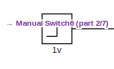
[diagram: root canvas - part 1/7, top center region]
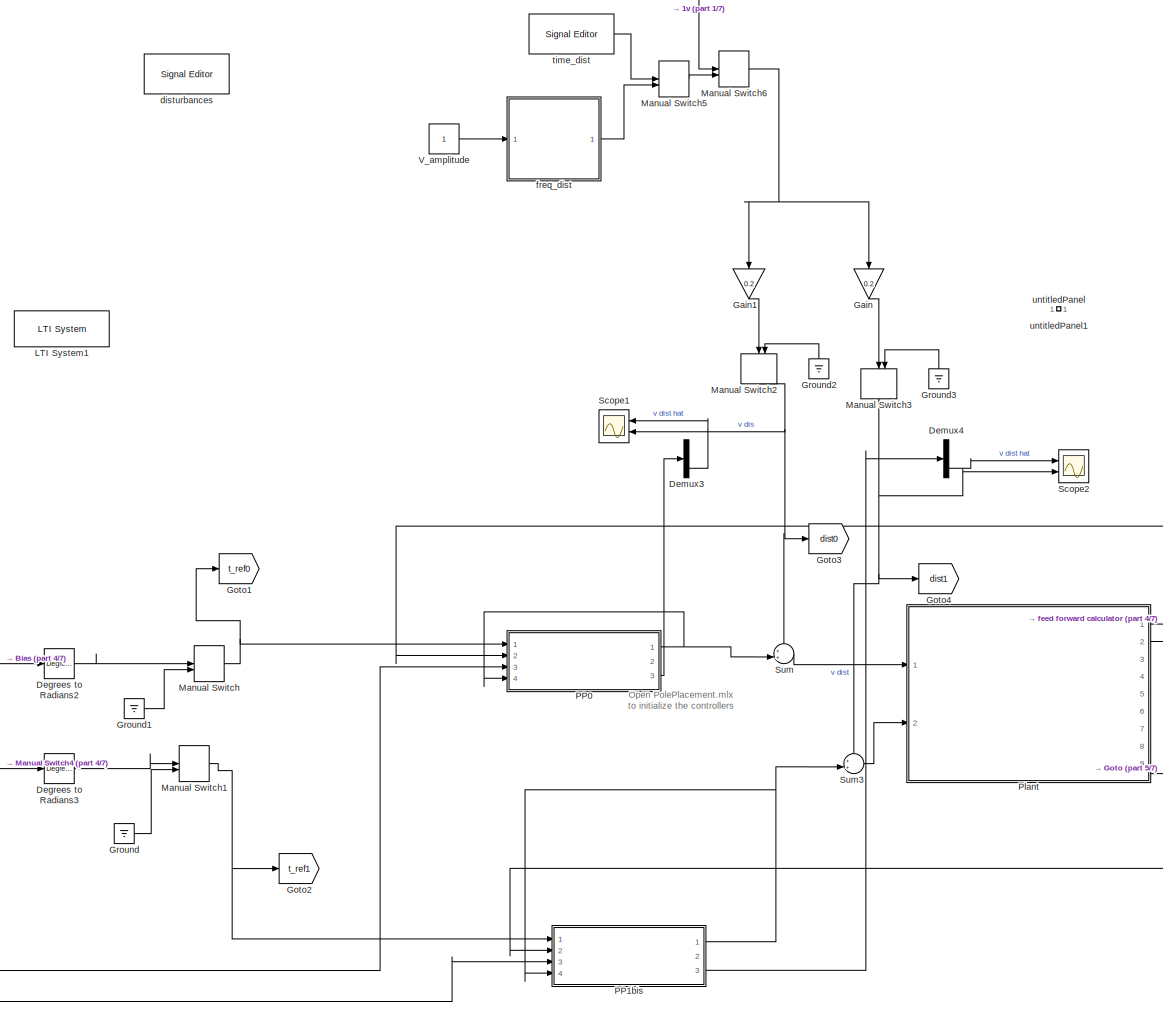
[diagram: root canvas - part 2/7, central region]
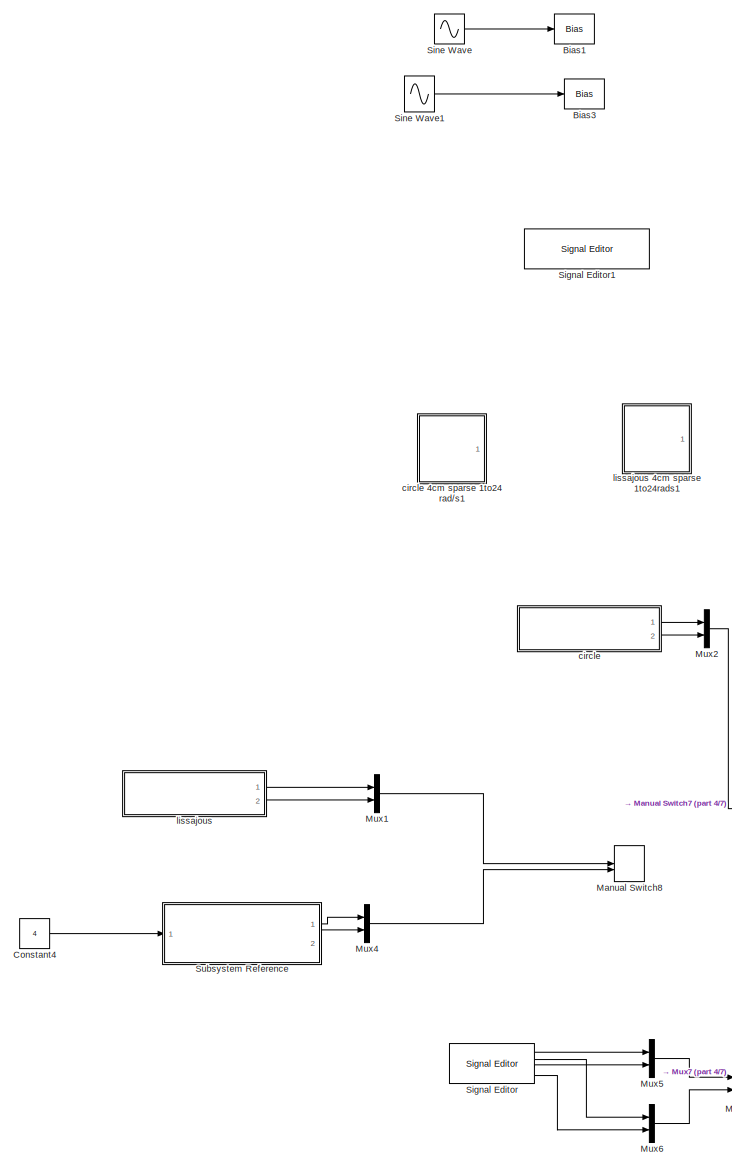
[diagram: root canvas - part 3/7, left side, full height]
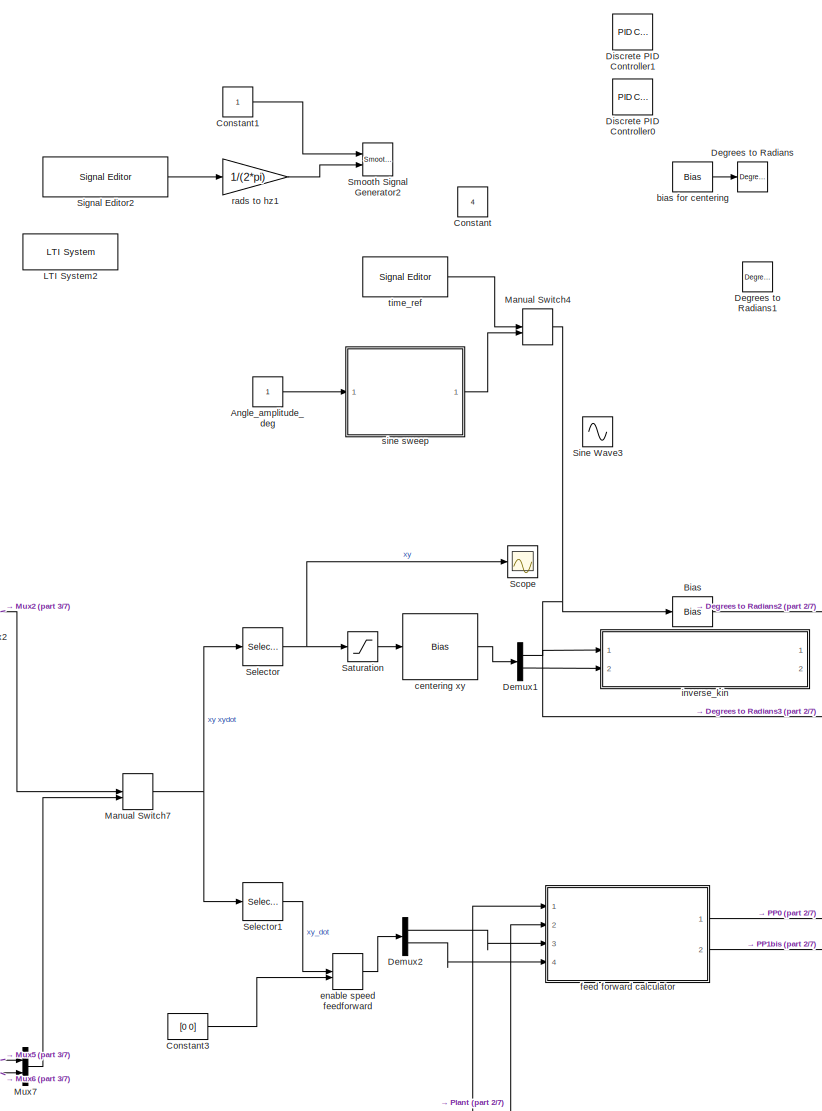
[diagram: root canvas - part 4/7, middle left region]
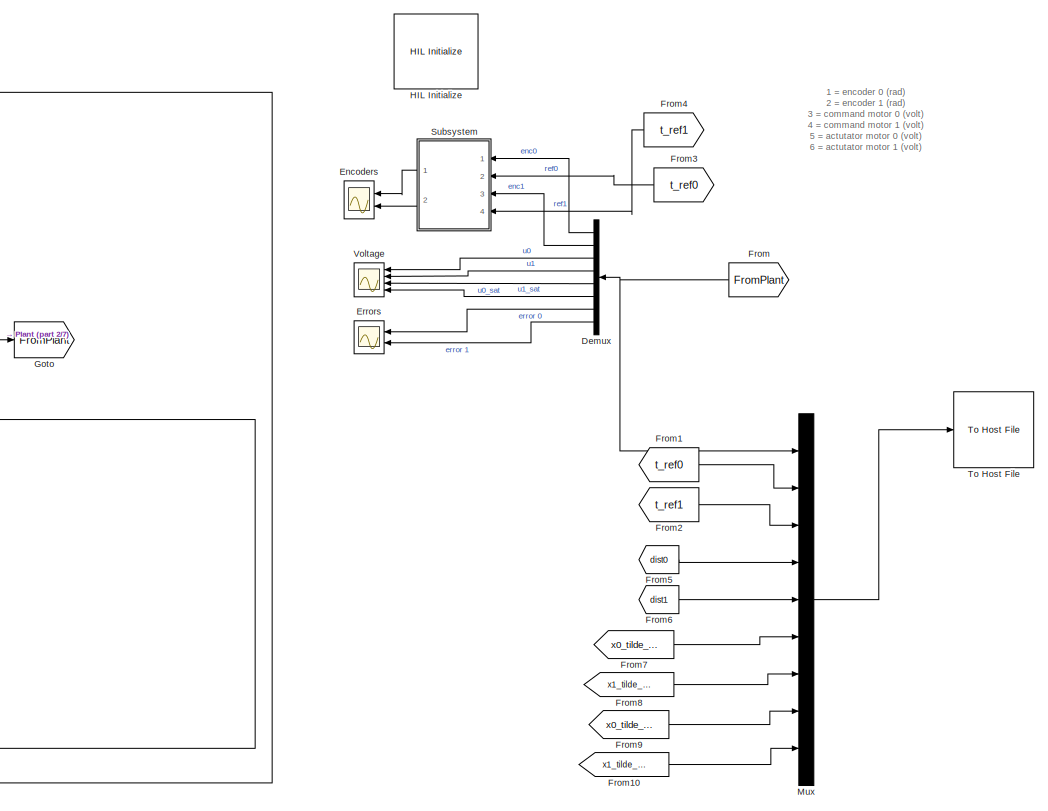
[diagram: root canvas - part 5/7, middle right region]
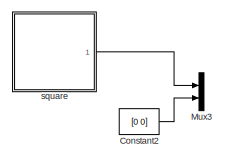
[diagram: root canvas - part 6/7, bottom left region]
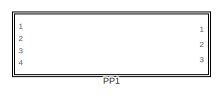
[diagram: root canvas - part 7/7, bottom center region]
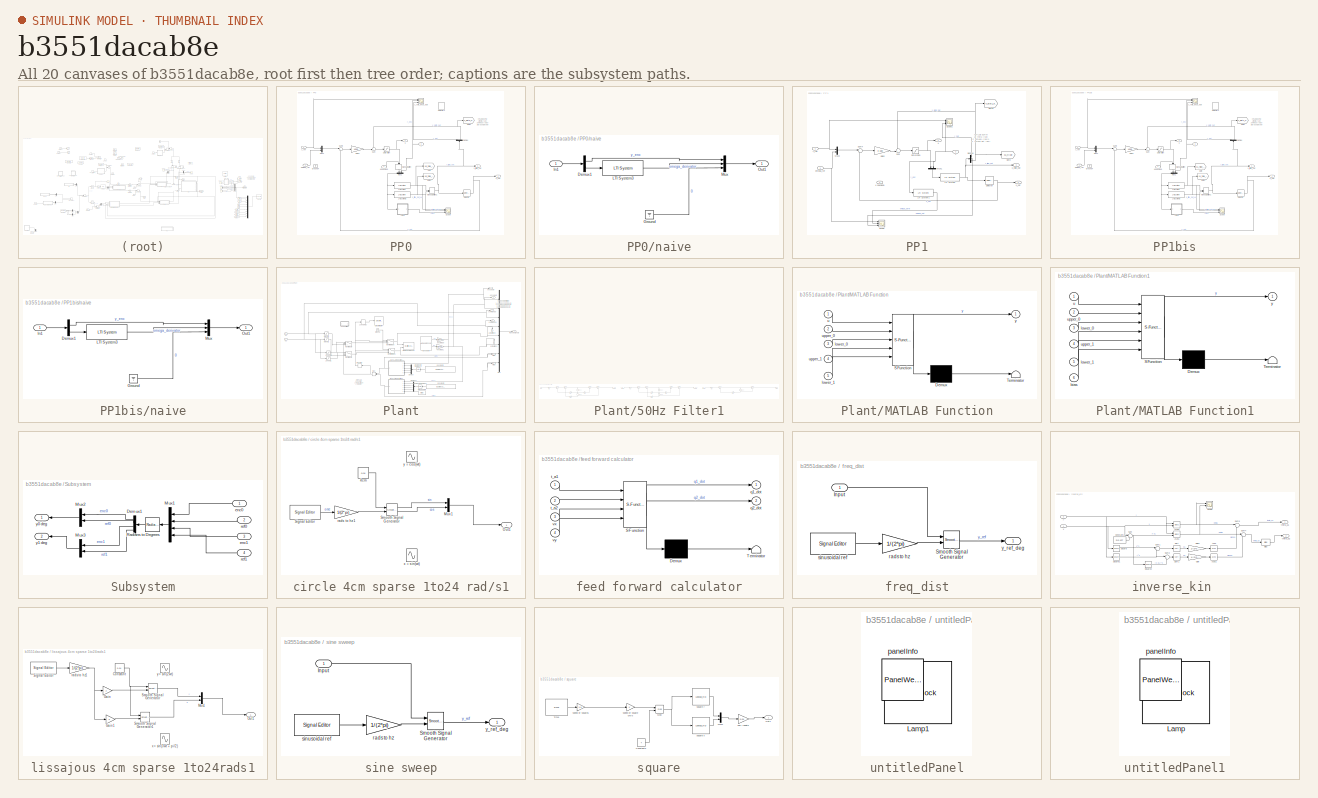
[diagram: thumbnail index - all 20 canvases of the model, root first then tree order]
MODEL slx_b3551dacab8e
KIND model
CONFIG AbsTol = auto
CONFIG EnableMultiTasking = on
CONFIG FixedStep = 0.002
CONFIG MaxStep = auto
CONFIG MinStep = auto
CONFIG PostLoadFcn = qc_set_target_type(getConfigSet(bdroot, 'QUARC Default Target Configuration'));
CONFIG RelTol = 1e-3
CONFIG SampleTimeConstraint = Unconstrained
CONFIG Solver = ode1
CONFIG SolverName = ode1
CONFIG StartTime = 0.0
CONFIG StopTime = 26
BLOCK [Step] 1v
  SampleTime = 0
BLOCK [Constant] Angle_amplitude_deg
BLOCK [Bias] Bias
  Bias = 7
  SaturateOnIntegerOverflow = off
BLOCK [Bias] Bias1
  Bias = 0.127
  Commented = on
  SaturateOnIntegerOverflow = off
BLOCK [Bias] Bias3
  Bias = 0.127
  Commented = on
  SaturateOnIntegerOverflow = off
BLOCK [Constant] Constant
  Commented = on
  Value = 4
BLOCK [Constant] Constant1
  Commented = on
BLOCK [Constant] Constant2
  Commented = on
  Value = [0 0]
BLOCK [Constant] Constant3
  Value = [0 0]
BLOCK [Constant] Constant4
  Value = 4
BLOCK [Reference] Degrees to Radians  REF=simulink_extras/Transformations/Degrees to
Radians
  Commented = on
  Ports = [1, 1]
  SourceBlock = simulink_extras/Transformations/Degrees to\nRadians
  SourceProductBaseCode = SL
  SourceProductName = Simulink
  SourceType = DegreesToRadians
BLOCK [Reference] Degrees to Radians1  REF=simulink_extras/Transformations/Degrees to
Radians
  Commented = on
  Ports = [1, 1]
  SourceBlock = simulink_extras/Transformations/Degrees to\nRadians
  SourceProductBaseCode = SL
  SourceProductName = Simulink
  SourceType = DegreesToRadians
BLOCK [Reference] Degrees to Radians2  REF=simulink_extras/Transformations/Degrees to
Radians
  Ports = [1, 1]
  SourceBlock = simulink_extras/Transformations/Degrees to\nRadians
  SourceProductBaseCode = SL
  SourceProductName = Simulink
  SourceType = DegreesToRadians
BLOCK [Reference] Degrees to Radians3  REF=simulink_extras/Transformations/Degrees to
Radians
  Ports = [1, 1]
  SourceBlock = simulink_extras/Transformations/Degrees to\nRadians
  SourceProductBaseCode = SL
  SourceProductName = Simulink
  SourceType = DegreesToRadians
BLOCK [Demux] Demux
  DisplayOption = bar
  Outputs = 8
  Ports = [1, 8]
BLOCK [Demux] Demux1
  DisplayOption = bar
  Outputs = 2
  Ports = [1, 2]
BLOCK [Demux] Demux2
  DisplayOption = bar
  Outputs = 2
  Ports = [1, 2]
BLOCK [Demux] Demux3
  DisplayOption = bar
  Outputs = 3
  Ports = [1, 3]
BLOCK [Demux] Demux4
  DisplayOption = bar
  Outputs = 3
  Ports = [1, 3]
BLOCK [Reference] Discrete PID Controller0  REF=simulink/Continuous/PID Controller
  Commented = on
  Ports = [1, 1]
  SourceBlock = simulink/Continuous/PID Controller
  SourceProductBaseCode = SL
  SourceProductName = Simulink
  SourceType = PID 1dof
BLOCK [Reference] Discrete PID Controller1  REF=simulink/Continuous/PID Controller
  Commented = on
  Ports = [1, 1]
  SourceBlock = simulink/Continuous/PID Controller
  SourceProductBaseCode = SL
  SourceProductName = Simulink
  SourceType = PID 1dof
BLOCK [Scope] Encoders
  Floating = off
  NumInputPorts = 2
  Ports = [2]
  ScopeSpecificationString = Simulink.scopes.TimeScopeBlockCfg('CurrentConfiguration', extmgr.ConfigurationSet(extmgr.Configuration('Core','General UI',true),extmgr.Configuration('Core','Source UI',true),extmgr.Configuration('Sources','WiredSimulink',true),extmgr.Configuration('Visuals','Time Domain',true,'SerializedDisplays',{struct('MinYLimReal','-12.052','MaxYLimReal','25.85083','YLabelReal','','MinYLimMag','0.00000','MaxY...<+2174ch>
BLOCK [Scope] Errors
  Floating = off
  NumInputPorts = 2
  Ports = [2]
  ScopeSpecificationString = Simulink.scopes.TimeScopeBlockCfg('CurrentConfiguration', extmgr.ConfigurationSet(extmgr.Configuration('Core','General UI',true),extmgr.Configuration('Core','Source UI',true),extmgr.Configuration('Sources','WiredSimulink',true,'DataLoggingVariableName','ScopeData2'),extmgr.Configuration('Visuals','Time Domain',true,'SerializedDisplays',{struct('MinYLimReal','-1.00000','MaxYLimReal','1.00000','YLab...<+1419ch>
BLOCK [From] From
  GotoTag = FromPlant
BLOCK [From] From1
  GotoTag = t_ref0
BLOCK [From] From10
  GotoTag = x1_tilde_KF
  TagVisibility = global
BLOCK [From] From2
  GotoTag = t_ref1
BLOCK [From] From3
  GotoTag = t_ref0
BLOCK [From] From4
  GotoTag = t_ref1
BLOCK [From] From5
  GotoTag = dist0
BLOCK [From] From6
  GotoTag = dist1
BLOCK [From] From7
  GotoTag = x0_tilde_PP
  TagVisibility = global
BLOCK [From] From8
  GotoTag = x1_tilde_PP
  TagVisibility = global
BLOCK [From] From9
  GotoTag = x0_tilde_KF
  TagVisibility = global
BLOCK [Gain] Gain
  Gain = 0.2
  OutDataTypeStr = Inherit: Inherit via internal rule
  ParamDataTypeStr = Inherit: Inherit via internal rule
  SaturateOnIntegerOverflow = off
BLOCK [Gain] Gain1
  Gain = 0.2
  OutDataTypeStr = Inherit: Inherit via internal rule
  ParamDataTypeStr = Inherit: Inherit via internal rule
  SaturateOnIntegerOverflow = off
BLOCK [Goto] Goto
  GotoTag = FromPlant
BLOCK [Goto] Goto1
  GotoTag = t_ref0
BLOCK [Goto] Goto2
  GotoTag = t_ref1
BLOCK [Goto] Goto3
  GotoTag = dist0
BLOCK [Goto] Goto4
  GotoTag = dist1
BLOCK [Ground] Ground
BLOCK [Ground] Ground1
BLOCK [Ground] Ground2
BLOCK [Ground] Ground3
BLOCK [Reference] HIL Initialize  REF=quarc_library/Data Acquisition/Generic/Configuration/HIL Initialize
  AttributesFormatString = %<object_name> (%<board_type>-%<board_number>)
  Commented = on
  Ports = []
  SourceBlock = quarc_library/Data Acquisition/Generic/Configuration/HIL Initialize
  SourceProductName = QUARC Targets
  SourceType = HIL Initialize
  UserDataPersistent = on
BLOCK [Reference] LTI System1  REF=cstblocks/LTI System
  Commented = on
  Ports = [1, 1]
  SourceBlock = cstblocks/LTI System
  SourceProductBaseCode = CT
  SourceProductName = Control System Toolbox
  SourceType = LTI Block
BLOCK [Reference] LTI System2  REF=cstblocks/LTI System
  Commented = on
  Ports = [1, 1]
  SourceBlock = cstblocks/LTI System
  SourceProductBaseCode = CT
  SourceProductName = Control System Toolbox
  SourceType = LTI Block
BLOCK [ManualSwitch] Manual Switch
BLOCK [ManualSwitch] Manual Switch1
  CurrentSetting = 0
BLOCK [ManualSwitch] Manual Switch2
  CurrentSetting = 0
BLOCK [ManualSwitch] Manual Switch3
  CurrentSetting = 0
BLOCK [ManualSwitch] Manual Switch4
BLOCK [ManualSwitch] Manual Switch5
BLOCK [ManualSwitch] Manual Switch6
  CurrentSetting = 0
BLOCK [ManualSwitch] Manual Switch7
  Commented = on
  CurrentSetting = 0
BLOCK [ManualSwitch] Manual Switch8
  Commented = on
BLOCK [Mux] Mux
  DisplayOption = bar
  Inputs = 9
  Ports = [9, 1]
BLOCK [Mux] Mux1
  Commented = on
  DisplayOption = bar
  Inputs = 2
  Ports = [2, 1]
BLOCK [Mux] Mux2
  Commented = on
  DisplayOption = bar
  Inputs = 2
  Ports = [2, 1]
BLOCK [Mux] Mux3
  Commented = on
  DisplayOption = bar
  Inputs = 2
  Ports = [2, 1]
BLOCK [Mux] Mux4
  Commented = on
  DisplayOption = bar
  Inputs = 2
  Ports = [2, 1]
BLOCK [Mux] Mux5
  Commented = on
  DisplayOption = bar
  Inputs = 2
  Ports = [2, 1]
BLOCK [Mux] Mux6
  Commented = on
  DisplayOption = bar
  Inputs = 2
  Ports = [2, 1]
BLOCK [Mux] Mux7
  Commented = on
  DisplayOption = bar
  Inputs = 2
  Ports = [2, 1]
BLOCK [SubSystem] PP0
  Ports = [4, 3]
  RequestExecContextInheritance = off
BLOCK [Demux] PP0/Demux
  DisplayOption = bar
  Outputs = 3
  Ports = [1, 3]
BLOCK [Gain] PP0/Gain2
  Gain = K0pp
  Multiplication = Matrix(K*u)
  OutDataTypeStr = Inherit: Inherit via internal rule
  ParamDataTypeStr = Inherit: Inherit via internal rule
  SaturateOnIntegerOverflow = off
BLOCK [Goto] PP0/Goto
  GotoTag = x0_tilde_PP
  TagVisibility = global
BLOCK [Goto] PP0/Goto1
  GotoTag = v_dist0_hat
  TagVisibility = global
BLOCK [Goto] PP0/Goto2
  GotoTag = x0_tilde_KF
  TagVisibility = global
BLOCK [Ground] PP0/Ground4
  Commented = on
BLOCK [Reference] PP0/LTI System  REF=cstblocks/LTI System
  Ports = [1, 1]
  SourceBlock = cstblocks/LTI System
  SourceProductBaseCode = CT
  SourceProductName = Control System Toolbox
  SourceType = LTI Block
BLOCK [Reference] PP0/LTI System3  REF=cstblocks/LTI System
  Ports = [1, 1]
  SourceBlock = cstblocks/LTI System
  SourceProductBaseCode = CT
  SourceProductName = Control System Toolbox
  SourceType = LTI Block
BLOCK [ManualSwitch] PP0/Manual Switch
  CurrentSetting = 0
BLOCK [ManualSwitch] PP0/Manual Switch1
BLOCK [Mux] PP0/Mux1
  DisplayOption = bar
  Inputs = 2
  Ports = [2, 1]
BLOCK [Mux] PP0/Mux2
  DisplayOption = bar
  Inputs = 2
  Ports = [2, 1]
BLOCK [Saturate] PP0/Saturation
  InputPortMap = u0
  LowerLimit = -10
  Ports = [1, 1]
  UpperLimit = 10
BLOCK [Scope] PP0/Scope
  Floating = off
  NumInputPorts = 3
  Ports = [3]
  ScopeSpecificationString = Simulink.scopes.TimeScopeBlockCfg('CurrentConfiguration', extmgr.ConfigurationSet(extmgr.Configuration('Core','General UI',true),extmgr.Configuration('Core','Source UI',true),extmgr.Configuration('Sources','WiredSimulink',true,'DataLoggingVariableName','ScopeData2'),extmgr.Configuration('Visuals','Time Domain',true,'SerializedDisplays',{struct('MinYLimReal','-1.00000','MaxYLimReal','1.00000','YLab...<+3134ch>
BLOCK [Selector] PP0/Selector
  IndexOptions = Index vector (dialog)
  Indices = [1 2]
  InputPortWidth = 3
  OutputSizes = 1
  Ports = [1, 1]
BLOCK [Selector] PP0/Selector1
  Commented = on
  IndexOptions = Index vector (dialog)
  Indices = 3
  InputPortWidth = 3
  OutputSizes = 1
  Ports = [1, 1]
BLOCK [Sum] PP0/Sum
  IconShape = round
  InputSameDT = off
  Inputs = -+|
  OutDataTypeStr = Inherit: Inherit via internal rule
  Ports = [2, 1]
  SaturateOnIntegerOverflow = off
BLOCK [Sum] PP0/Sum4
  IconShape = round
  InputSameDT = off
  Inputs = |+-
  OutDataTypeStr = Inherit: Inherit via internal rule
  Ports = [2, 1]
  SaturateOnIntegerOverflow = off
BLOCK [SubSystem] PP0/naive
  Ports = [1, 1]
  RequestExecContextInheritance = off
BLOCK [Demux] PP0/naive/Demux1
  DisplayOption = bar
  Outputs = 2
  Ports = [1, 2]
BLOCK [Ground] PP0/naive/Ground
BLOCK [Inport] PP0/naive/In1
  IconDisplay = Port number
BLOCK [Reference] PP0/naive/LTI System3  REF=cstblocks/LTI System
  Ports = [1, 1]
  SourceBlock = cstblocks/LTI System
  SourceProductBaseCode = CT
  SourceProductName = Control System Toolbox
  SourceType = LTI Block
BLOCK [Mux] PP0/naive/Mux
  DisplayOption = bar
  Inputs = 3
  Ports = [3, 1]
BLOCK [Outport] PP0/naive/Out1
  IconDisplay = Port number
BLOCK [Inport] PP0/omega_ref
  IconDisplay = Port number
  Port = 3
BLOCK [Outport] PP0/u
  IconDisplay = Port number
BLOCK [Inport] PP0/u openloop
  IconDisplay = Port number
  Port = 4
BLOCK [Outport] PP0/x_hat
  IconDisplay = Port number
  Port = 2
BLOCK [Outport] PP0/x_tilde_hat
  IconDisplay = Port number
  Port = 3
BLOCK [Inport] PP0/y
  IconDisplay = Port number
  Port = 2
BLOCK [Inport] PP0/y_ref
  IconDisplay = Port number
BLOCK [Scope] PP0/y_ref//y_enc//y_hat
  Floating = off
  NumInputPorts = 4
  Ports = [4]
  ScopeSpecificationString = Simulink.scopes.TimeScopeBlockCfg('CurrentConfiguration', extmgr.ConfigurationSet(extmgr.Configuration('Core','General UI',true),extmgr.Configuration('Core','Source UI',true),extmgr.Configuration('Sources','WiredSimulink',true,'DataLoggingVariableName','ScopeData1'),extmgr.Configuration('Visuals','Time Domain',true,'SerializedDisplays',{struct('MinYLimReal','-0.24902','MaxYLimReal','-0.01474','YLa...<+1528ch>
BLOCK [SubSystem] PP1
  Commented = on
  Ports = [4, 3]
  RequestExecContextInheritance = off
BLOCK [Demux] PP1/Demux
  DisplayOption = bar
  Outputs = 3
  Ports = [1, 3]
BLOCK [Gain] PP1/Gain2
  Gain = K1pp
  Multiplication = Matrix(K*u)
  OutDataTypeStr = Inherit: Inherit via internal rule
  ParamDataTypeStr = Inherit: Inherit via internal rule
  SaturateOnIntegerOverflow = off
BLOCK [Goto] PP1/Goto
  GotoTag = x1_tilde
  TagVisibility = global
BLOCK [Goto] PP1/Goto1
  GotoTag = v_dist1_hat
  TagVisibility = global
BLOCK [Reference] PP1/LTI System  REF=cstblocks/LTI System
  Ports = [1, 1]
  SourceBlock = cstblocks/LTI System
  SourceProductBaseCode = CT
  SourceProductName = Control System Toolbox
  SourceType = LTI Block
BLOCK [Reference] PP1/LTI System1  REF=cstblocks/LTI System
  Ports = [1, 1]
  SourceBlock = cstblocks/LTI System
  SourceProductBaseCode = CT
  SourceProductName = Control System Toolbox
  SourceType = LTI Block
BLOCK [Mux] PP1/Mux1
  DisplayOption = bar
  Inputs = 2
  Ports = [2, 1]
BLOCK [Mux] PP1/Mux2
  DisplayOption = bar
  Inputs = 2
  Ports = [2, 1]
BLOCK [Saturate] PP1/Saturation
  InputPortMap = u0
  LowerLimit = -10
  Ports = [1, 1]
  UpperLimit = 10
BLOCK [Scope] PP1/Scope
  Floating = off
  NumInputPorts = 3
  Ports = [3]
  ScopeSpecificationString = Simulink.scopes.TimeScopeBlockCfg('CurrentConfiguration', extmgr.ConfigurationSet(extmgr.Configuration('Core','General UI',true),extmgr.Configuration('Core','Source UI',true),extmgr.Configuration('Sources','WiredSimulink',true,'DataLoggingVariableName','ScopeData1'),extmgr.Configuration('Visuals','Time Domain',true,'SerializedDisplays',{struct('MinYLimReal','-0.81811','MaxYLimReal','0.84088','YLab...<+1432ch>
BLOCK [Scope] PP1/Scope1
  Floating = off
  NumInputPorts = 3
  Ports = [3]
  ScopeSpecificationString = Simulink.scopes.TimeScopeBlockCfg('CurrentConfiguration', extmgr.ConfigurationSet(extmgr.Configuration('Core','General UI',true),extmgr.Configuration('Core','Source UI',true),extmgr.Configuration('Sources','WiredSimulink',true,'DataLoggingVariableName','ScopeData2'),extmgr.Configuration('Visuals','Time Domain',true,'SerializedDisplays',{struct('MinYLimReal','-0.24927','MaxYLimReal','0.16632','YLab...<+1432ch>
BLOCK [Selector] PP1/Selector
  IndexOptions = Index vector (dialog)
  Indices = [1 2]
  InputPortWidth = 3
  OutputSizes = 1
  Ports = [1, 1]
BLOCK [Sum] PP1/Sum
  IconShape = round
  InputSameDT = off
  Inputs = -+|
  OutDataTypeStr = Inherit: Inherit via internal rule
  Ports = [2, 1]
  SaturateOnIntegerOverflow = off
BLOCK [Sum] PP1/Sum4
  IconShape = round
  InputSameDT = off
  Inputs = |+-
  OutDataTypeStr = Inherit: Inherit via internal rule
  Ports = [2, 1]
  SaturateOnIntegerOverflow = off
BLOCK [Inport] PP1/omega_ref
  IconDisplay = Port number
  Port = 3
BLOCK [Outport] PP1/u
  IconDisplay = Port number
BLOCK [Inport] PP1/u openloop
  IconDisplay = Port number
  Port = 4
BLOCK [Outport] PP1/x_hat
  IconDisplay = Port number
  Port = 2
BLOCK [Outport] PP1/x_tilde_hat
  IconDisplay = Port number
  Port = 3
BLOCK [Inport] PP1/y
  IconDisplay = Port number
  Port = 2
BLOCK [Inport] PP1/y_ref
  IconDisplay = Port number
BLOCK [SubSystem] PP1bis
  Ports = [4, 3]
  RequestExecContextInheritance = off
BLOCK [Demux] PP1bis/Demux
  DisplayOption = bar
  Outputs = 3
  Ports = [1, 3]
BLOCK [Gain] PP1bis/Gain2
  Gain = K0pp
  Multiplication = Matrix(K*u)
  OutDataTypeStr = Inherit: Inherit via internal rule
  ParamDataTypeStr = Inherit: Inherit via internal rule
  SaturateOnIntegerOverflow = off
BLOCK [Goto] PP1bis/Goto
  GotoTag = x1_tilde_PP
  TagVisibility = global
BLOCK [Goto] PP1bis/Goto1
  GotoTag = v_dist1_hat
  TagVisibility = global
BLOCK [Goto] PP1bis/Goto2
  GotoTag = x1_tilde_KF
  TagVisibility = global
BLOCK [Ground] PP1bis/Ground4
  Commented = on
BLOCK [Reference] PP1bis/LTI System  REF=cstblocks/LTI System
  Ports = [1, 1]
  SourceBlock = cstblocks/LTI System
  SourceProductBaseCode = CT
  SourceProductName = Control System Toolbox
  SourceType = LTI Block
BLOCK [Reference] PP1bis/LTI System3  REF=cstblocks/LTI System
  Ports = [1, 1]
  SourceBlock = cstblocks/LTI System
  SourceProductBaseCode = CT
  SourceProductName = Control System Toolbox
  SourceType = LTI Block
BLOCK [ManualSwitch] PP1bis/Manual Switch
  CurrentSetting = 0
BLOCK [ManualSwitch] PP1bis/Manual Switch1
BLOCK [Mux] PP1bis/Mux1
  DisplayOption = bar
  Inputs = 2
  Ports = [2, 1]
BLOCK [Mux] PP1bis/Mux2
  DisplayOption = bar
  Inputs = 2
  Ports = [2, 1]
BLOCK [Saturate] PP1bis/Saturation
  InputPortMap = u0
  LowerLimit = -10
  Ports = [1, 1]
  UpperLimit = 10
BLOCK [Scope] PP1bis/Scope
  Floating = off
  NumInputPorts = 3
  Ports = [3]
  ScopeSpecificationString = Simulink.scopes.TimeScopeBlockCfg('CurrentConfiguration', extmgr.ConfigurationSet(extmgr.Configuration('Core','General UI',true),extmgr.Configuration('Core','Source UI',true),extmgr.Configuration('Sources','WiredSimulink',true,'DataLoggingVariableName','ScopeData2'),extmgr.Configuration('Visuals','Time Domain',true,'SerializedDisplays',{struct('MinYLimReal','-1.00000','MaxYLimReal','1.00000','YLab...<+3134ch>
BLOCK [Selector] PP1bis/Selector
  IndexOptions = Index vector (dialog)
  Indices = [1 2]
  InputPortWidth = 3
  OutputSizes = 1
  Ports = [1, 1]
BLOCK [Selector] PP1bis/Selector1
  Commented = on
  IndexOptions = Index vector (dialog)
  Indices = 3
  InputPortWidth = 3
  OutputSizes = 1
  Ports = [1, 1]
BLOCK [Sum] PP1bis/Sum
  IconShape = round
  InputSameDT = off
  Inputs = -+|
  OutDataTypeStr = Inherit: Inherit via internal rule
  Ports = [2, 1]
  SaturateOnIntegerOverflow = off
BLOCK [Sum] PP1bis/Sum4
  IconShape = round
  InputSameDT = off
  Inputs = |+-
  OutDataTypeStr = Inherit: Inherit via internal rule
  Ports = [2, 1]
  SaturateOnIntegerOverflow = off
BLOCK [SubSystem] PP1bis/naive
  Ports = [1, 1]
  RequestExecContextInheritance = off
BLOCK [Demux] PP1bis/naive/Demux1
  DisplayOption = bar
  Outputs = 2
  Ports = [1, 2]
BLOCK [Ground] PP1bis/naive/Ground
BLOCK [Inport] PP1bis/naive/In1
  IconDisplay = Port number
BLOCK [Reference] PP1bis/naive/LTI System3  REF=cstblocks/LTI System
  Ports = [1, 1]
  SourceBlock = cstblocks/LTI System
  SourceProductBaseCode = CT
  SourceProductName = Control System Toolbox
  SourceType = LTI Block
BLOCK [Mux] PP1bis/naive/Mux
  DisplayOption = bar
  Inputs = 3
  Ports = [3, 1]
BLOCK [Outport] PP1bis/naive/Out1
  IconDisplay = Port number
BLOCK [Inport] PP1bis/omega_ref
  IconDisplay = Port number
  Port = 3
BLOCK [Outport] PP1bis/u
  IconDisplay = Port number
BLOCK [Inport] PP1bis/u openloop
  IconDisplay = Port number
  Port = 4
BLOCK [Outport] PP1bis/x_hat
  IconDisplay = Port number
  Port = 2
BLOCK [Outport] PP1bis/x_tilde_hat
  IconDisplay = Port number
  Port = 3
BLOCK [Inport] PP1bis/y
  IconDisplay = Port number
  Port = 2
BLOCK [Inport] PP1bis/y_ref
  IconDisplay = Port number
BLOCK [Scope] PP1bis/y_ref//y_enc//y_hat
  Floating = off
  NumInputPorts = 4
  Ports = [4]
  ScopeSpecificationString = Simulink.scopes.TimeScopeBlockCfg('CurrentConfiguration', extmgr.ConfigurationSet(extmgr.Configuration('Core','General UI',true),extmgr.Configuration('Core','Source UI',true),extmgr.Configuration('Sources','WiredSimulink',true,'DataLoggingVariableName','ScopeData1'),extmgr.Configuration('Visuals','Time Domain',true,'SerializedDisplays',{struct('MinYLimReal','-0.24902','MaxYLimReal','-0.01474','YLa...<+1528ch>
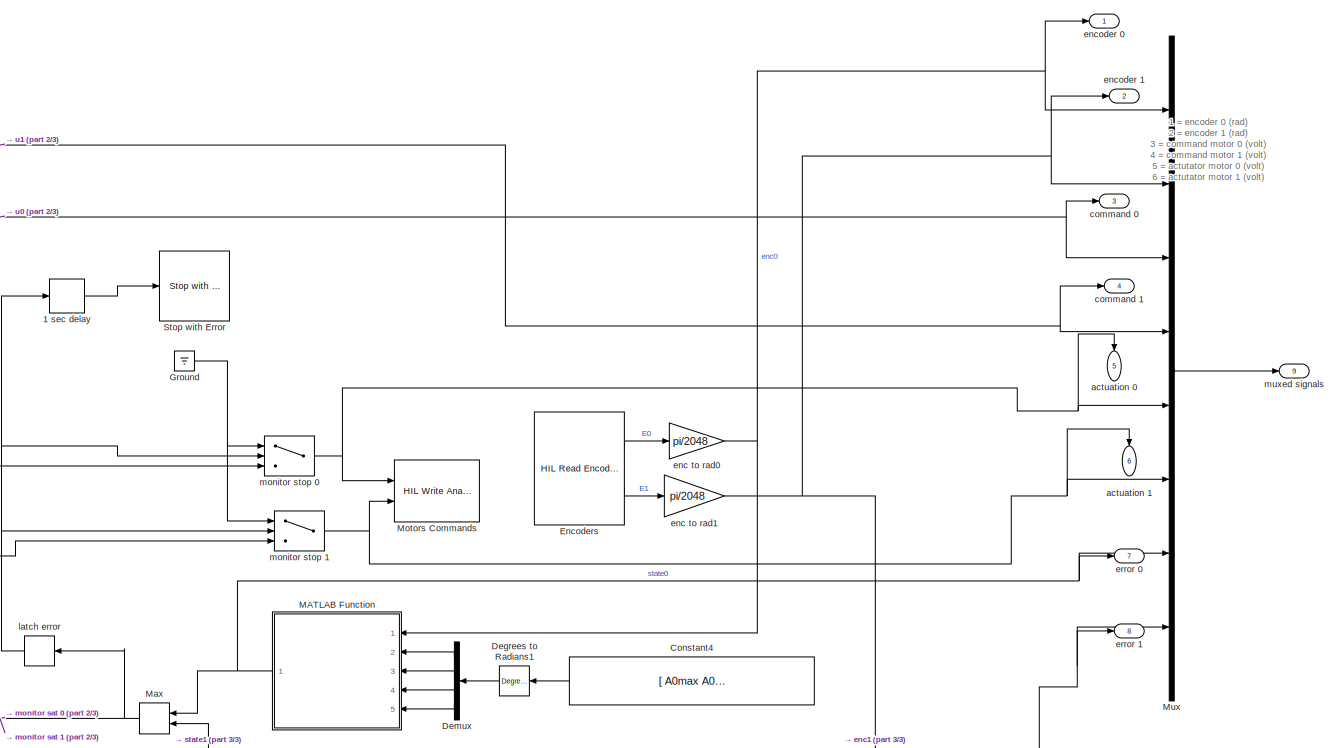
[diagram: Plant - part 1/3, center side, full height]
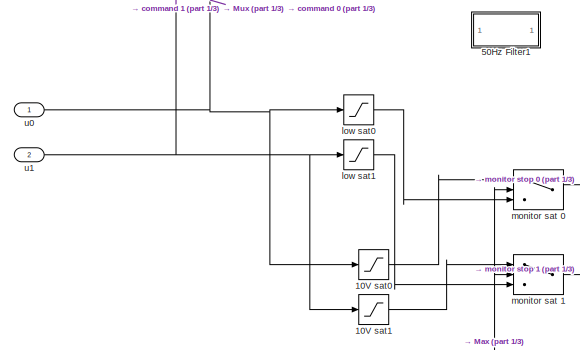
[diagram: Plant - part 2/3, middle left region]
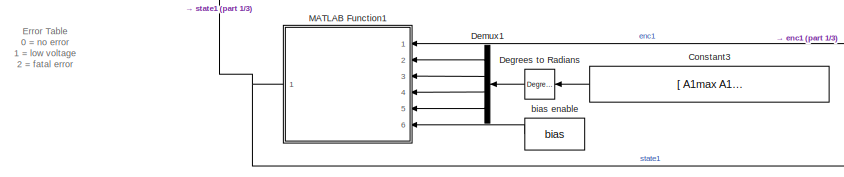
[diagram: Plant - part 3/3, bottom center region]
BLOCK [SubSystem] Plant
  Ports = [2, 9]
  RequestExecContextInheritance = off
BLOCK [Delay] Plant/1 sec delay
  DelayLength = 500
  InputPortMap = u0
  Ports = [1, 1]
BLOCK [Saturate] Plant/10V sat0
  InputPortMap = u0
  LowerLimit = -HighSat
  Ports = [1, 1]
  UpperLimit = HighSat
BLOCK [Saturate] Plant/10V sat1
  InputPortMap = u0
  LowerLimit = -HighSat
  Ports = [1, 1]
  UpperLimit = HighSat
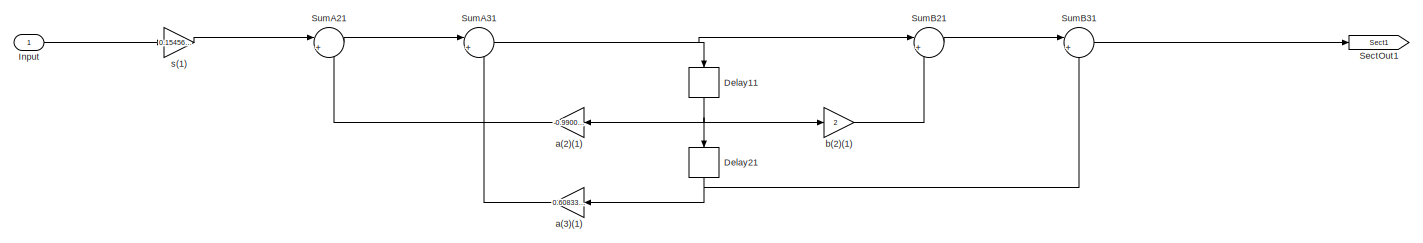
[diagram: Plant/50Hz Filter1 - part 1/3, left side, full height]
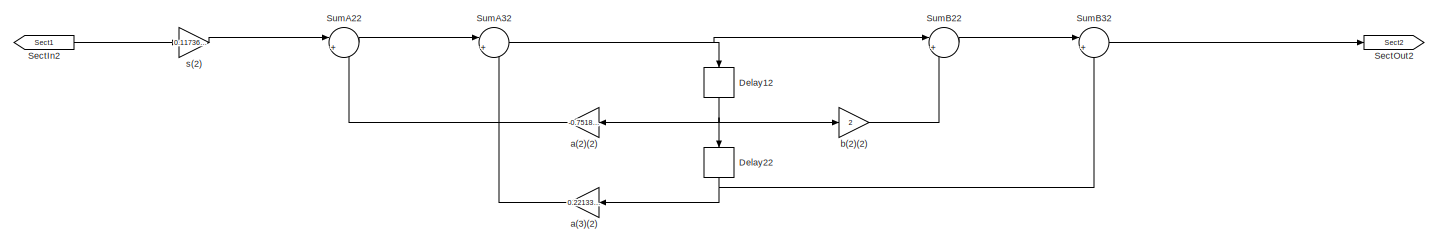
[diagram: Plant/50Hz Filter1 - part 2/3, center side, full height]
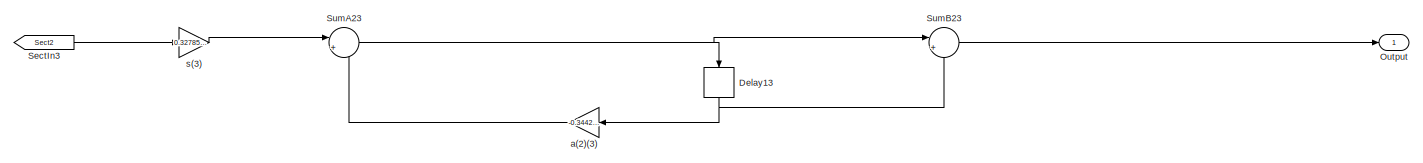
[diagram: Plant/50Hz Filter1 - part 3/3, middle right region]
BLOCK [SubSystem] Plant/50Hz Filter1
  Commented = on
  ErrorFcn = dspFilterRealizedInBasicElemsAlgLoopErrFcnCallback
  Ports = [1, 1]
  RequestExecContextInheritance = off
  Tag = FilterWizardSubSystem
  UserDataPersistent = on
BLOCK [Delay] Plant/50Hz Filter1/Delay11
  DelayLength = 1
  InitialCondition = 0
  InputPortMap = u0
  Ports = [1, 1]
BLOCK [Delay] Plant/50Hz Filter1/Delay12
  DelayLength = 1
  InitialCondition = 0
  InputPortMap = u0
  Ports = [1, 1]
BLOCK [Delay] Plant/50Hz Filter1/Delay13
  DelayLength = 1
  InitialCondition = 0
  InputPortMap = u0
  Ports = [1, 1]
BLOCK [Delay] Plant/50Hz Filter1/Delay21
  DelayLength = 1
  InitialCondition = 0
  InputPortMap = u0
  Ports = [1, 1]
BLOCK [Delay] Plant/50Hz Filter1/Delay22
  DelayLength = 1
  InitialCondition = 0
  InputPortMap = u0
  Ports = [1, 1]
BLOCK [Inport] Plant/50Hz Filter1/Input
  IconDisplay = Port number
BLOCK [Outport] Plant/50Hz Filter1/Output
  IconDisplay = Port number
BLOCK [From] Plant/50Hz Filter1/SectIn2
  GotoTag = Sect1
BLOCK [From] Plant/50Hz Filter1/SectIn3
  GotoTag = Sect2
BLOCK [Goto] Plant/50Hz Filter1/SectOut1
  GotoTag = Sect1
BLOCK [Goto] Plant/50Hz Filter1/SectOut2
  GotoTag = Sect2
BLOCK [Sum] Plant/50Hz Filter1/SumA21
  IconShape = round
  InputSameDT = off
  Inputs = |+-
  Ports = [2, 1]
  RndMeth = Nearest
BLOCK [Sum] Plant/50Hz Filter1/SumA22
  IconShape = round
  InputSameDT = off
  Inputs = |+-
  Ports = [2, 1]
  RndMeth = Nearest
BLOCK [Sum] Plant/50Hz Filter1/SumA23
  IconShape = round
  InputSameDT = off
  Inputs = |+-
  Ports = [2, 1]
  RndMeth = Nearest
BLOCK [Sum] Plant/50Hz Filter1/SumA31
  IconShape = round
  InputSameDT = off
  Inputs = |+-
  Ports = [2, 1]
  RndMeth = Nearest
BLOCK [Sum] Plant/50Hz Filter1/SumA32
  IconShape = round
  InputSameDT = off
  Inputs = |+-
  Ports = [2, 1]
  RndMeth = Nearest
BLOCK [Sum] Plant/50Hz Filter1/SumB21
  IconShape = round
  InputSameDT = off
  Inputs = |++
  Ports = [2, 1]
  RndMeth = Nearest
BLOCK [Sum] Plant/50Hz Filter1/SumB22
  IconShape = round
  InputSameDT = off
  Inputs = |++
  Ports = [2, 1]
  RndMeth = Nearest
BLOCK [Sum] Plant/50Hz Filter1/SumB23
  IconShape = round
  InputSameDT = off
  Inputs = |++
  Ports = [2, 1]
  RndMeth = Nearest
BLOCK [Sum] Plant/50Hz Filter1/SumB31
  IconShape = round
  InputSameDT = off
  Inputs = |++
  Ports = [2, 1]
  RndMeth = Nearest
BLOCK [Sum] Plant/50Hz Filter1/SumB32
  IconShape = round
  InputSameDT = off
  Inputs = |++
  Ports = [2, 1]
  RndMeth = Nearest
BLOCK [Gain] Plant/50Hz Filter1/a(2)(1)
  Gain = -0.990091882984657556
  ParamDataTypeStr = double
  RndMeth = Nearest
BLOCK [Gain] Plant/50Hz Filter1/a(2)(2)
  Gain = -0.751855293662188617
  ParamDataTypeStr = double
  RndMeth = Nearest
BLOCK [Gain] Plant/50Hz Filter1/a(2)(3)
  Gain = -0.344284801161231391
  ParamDataTypeStr = double
  RndMeth = Nearest
BLOCK [Gain] Plant/50Hz Filter1/a(3)(1)
  Gain = 0.60833338328188824
  ParamDataTypeStr = double
  RndMeth = Nearest
BLOCK [Gain] Plant/50Hz Filter1/a(3)(2)
  Gain = 0.221335099272643721
  ParamDataTypeStr = double
  RndMeth = Nearest
BLOCK [Gain] Plant/50Hz Filter1/b(2)(1)
  Gain = 2
  ParamDataTypeStr = double
  RndMeth = Nearest
BLOCK [Gain] Plant/50Hz Filter1/b(2)(2)
  Gain = 2
  ParamDataTypeStr = double
  RndMeth = Nearest
BLOCK [Gain] Plant/50Hz Filter1/s(1)
  Gain = 0.154560375074307699
  ParamDataTypeStr = double
  RndMeth = Nearest
BLOCK [Gain] Plant/50Hz Filter1/s(2)
  Gain = 0.117369951402613776
  ParamDataTypeStr = double
  RndMeth = Nearest
BLOCK [Gain] Plant/50Hz Filter1/s(3)
  Gain = 0.327857599419384249
  ParamDataTypeStr = double
  RndMeth = Nearest
BLOCK [Constant] Plant/Constant3
  Value = [  A1max A1min A1max+A1slack A1min-A1slack]
BLOCK [Constant] Plant/Constant4
  Value = [  A0max A0min A0max+A0slack A0min-A1slack]
BLOCK [Reference] Plant/Degrees to Radians  REF=simulink_extras/Transformations/Degrees to
Radians
  Ports = [1, 1]
  SourceBlock = simulink_extras/Transformations/Degrees to\nRadians
  SourceProductBaseCode = SL
  SourceProductName = Simulink
  SourceType = DegreesToRadians
BLOCK [Reference] Plant/Degrees to Radians1  REF=simulink_extras/Transformations/Degrees to
Radians
  Ports = [1, 1]
  SourceBlock = simulink_extras/Transformations/Degrees to\nRadians
  SourceProductBaseCode = SL
  SourceProductName = Simulink
  SourceType = DegreesToRadians
BLOCK [Demux] Plant/Demux
  DisplayOption = bar
  Ports = [1, 4]
BLOCK [Demux] Plant/Demux1
  DisplayOption = bar
  Ports = [1, 4]
BLOCK [Reference] Plant/Encoders  REF=quarc_library/Data Acquisition/Generic/Timebases/HIL Read Encoder
Timebase
  AttributesFormatString = (%<object_name>)
  Commented = on
  Ports = [0, 2]
  SourceBlock = quarc_library/Data Acquisition/Generic/Timebases/HIL Read Encoder\nTimebase
  SourceProductName = QUARC Targets
  SourceType = HIL Read Encoder Timebase
  UserDataPersistent = on
BLOCK [Ground] Plant/Ground
BLOCK [SubSystem] Plant/MATLAB Function
  ErrorFcn = Stateflow.Translate.translate
  PermitHierarchicalResolution = ExplicitOnly
  Ports = [5, 1]
  RequestExecContextInheritance = off
  SFBlockType = MATLAB Function
  TreatAsAtomicUnit = on
BLOCK [Demux] Plant/MATLAB Function/ Demux 
  Outputs = 1
  Ports = [1, 1]
BLOCK [S-Function] Plant/MATLAB Function/ SFunction 
  EnableBusSupport = on
  FunctionName = sf_sfun
  PortCounts = [5 2]
  Ports = [5, 2]
  SFcnIsStateOwnerBlock = off
  SFunctionDeploymentMode = off
  Tag = Stateflow S-Function 2
BLOCK [Terminator] Plant/MATLAB Function/ Terminator 
BLOCK [Inport] Plant/MATLAB Function/lower_0
  IconDisplay = Port number
  Port = 3
BLOCK [Inport] Plant/MATLAB Function/lower_1
  IconDisplay = Port number
  Port = 5
BLOCK [Inport] Plant/MATLAB Function/u
  IconDisplay = Port number
BLOCK [Inport] Plant/MATLAB Function/upper_0
  IconDisplay = Port number
  Port = 2
BLOCK [Inport] Plant/MATLAB Function/upper_1
  IconDisplay = Port number
  Port = 4
BLOCK [Outport] Plant/MATLAB Function/y
  IconDisplay = Port number
  VectorParamsAs1DForOutWhenUnconnected = off
BLOCK [SubSystem] Plant/MATLAB Function1
  ErrorFcn = Stateflow.Translate.translate
  PermitHierarchicalResolution = ExplicitOnly
  Ports = [6, 1]
  RequestExecContextInheritance = off
  SFBlockType = MATLAB Function
  TreatAsAtomicUnit = on
BLOCK [Demux] Plant/MATLAB Function1/ Demux 
  Outputs = 1
  Ports = [1, 1]
BLOCK [S-Function] Plant/MATLAB Function1/ SFunction 
  EnableBusSupport = on
  FunctionName = sf_sfun
  PortCounts = [6 2]
  Ports = [6, 2]
  SFcnIsStateOwnerBlock = off
  SFunctionDeploymentMode = off
  Tag = Stateflow S-Function 1
BLOCK [Terminator] Plant/MATLAB Function1/ Terminator 
BLOCK [Inport] Plant/MATLAB Function1/bias
  IconDisplay = Port number
  Port = 6
BLOCK [Inport] Plant/MATLAB Function1/lower_0
  IconDisplay = Port number
  Port = 3
BLOCK [Inport] Plant/MATLAB Function1/lower_1
  IconDisplay = Port number
  Port = 5
BLOCK [Inport] Plant/MATLAB Function1/u
  IconDisplay = Port number
BLOCK [Inport] Plant/MATLAB Function1/upper_0
  IconDisplay = Port number
  Port = 2
BLOCK [Inport] Plant/MATLAB Function1/upper_1
  IconDisplay = Port number
  Port = 4
BLOCK [Outport] Plant/MATLAB Function1/y
  IconDisplay = Port number
  VectorParamsAs1DForOutWhenUnconnected = off
BLOCK [MinMax] Plant/Max
  Function = max
  InputSameDT = off
  Inputs = 2
  Ports = [2, 1]
  SaturateOnIntegerOverflow = off
BLOCK [Reference] Plant/Motors Commands  REF=quarc_library/Data Acquisition/Generic/Immediate I//O/HIL Write Analog
  AttributesFormatString = (%<object_name>)
  Ports = [2]
  SourceBlock = quarc_library/Data Acquisition/Generic/Immediate I//O/HIL Write Analog
  SourceProductName = QUARC Targets
  SourceType = HIL Write Analog
  UserDataPersistent = on
BLOCK [Mux] Plant/Mux
  DisplayOption = bar
  Inputs = 8
  Ports = [8, 1]
BLOCK [Reference] Plant/Stop with Error  REF=quarc_library/Sinks/Error Handling/Stop with Error
  AttributesFormatString = "%<message>"
  Ports = [1]
  SourceBlock = quarc_library/Sinks/Error Handling/Stop with Error
  SourceProductName = QUARC Targets
  SourceType = Stop with Error
BLOCK [Outport] Plant/actuation 0
  IconDisplay = Port number
  Port = 5
  Unit = V
BLOCK [Outport] Plant/actuation 1
  IconDisplay = Port number
  Port = 6
  Unit = V
BLOCK [Constant] Plant/bias enable
  Value = bias
BLOCK [Outport] Plant/command 0
  IconDisplay = Port number
  Port = 3
  Unit = V
BLOCK [Outport] Plant/command 1
  IconDisplay = Port number
  Port = 4
  Unit = V
BLOCK [Gain] Plant/enc to rad0
  Gain = pi/2048
  OutDataTypeStr = Inherit: Inherit via internal rule
  ParamDataTypeStr = Inherit: Inherit via internal rule
  SaturateOnIntegerOverflow = off
BLOCK [Gain] Plant/enc to rad1
  Gain = pi/2048
  OutDataTypeStr = Inherit: Inherit via internal rule
  ParamDataTypeStr = Inherit: Inherit via internal rule
  SaturateOnIntegerOverflow = off
BLOCK [Outport] Plant/encoder 0
  IconDisplay = Port number
  Unit = rad
BLOCK [Outport] Plant/encoder 1
  IconDisplay = Port number
  Port = 2
  Unit = rad
BLOCK [Outport] Plant/error 0
  IconDisplay = Port number
  Port = 7
BLOCK [Outport] Plant/error 1
  IconDisplay = Port number
  Port = 8
BLOCK [Relay] Plant/latch error
  OffSwitchValue = -1
  OnSwitchValue = 2
BLOCK [Saturate] Plant/low sat0
  InputPortMap = u0
  LowerLimit = -LowSat
  Ports = [1, 1]
  UpperLimit = LowSat
BLOCK [Saturate] Plant/low sat1
  InputPortMap = u0
  LowerLimit = -LowSat
  Ports = [1, 1]
  UpperLimit = LowSat
BLOCK [Switch] Plant/monitor sat 0
  InputSameDT = off
  SaturateOnIntegerOverflow = off
  Threshold = 0.5
BLOCK [Switch] Plant/monitor sat 1 
  InputSameDT = off
  SaturateOnIntegerOverflow = off
  Threshold = 0.5
BLOCK [Switch] Plant/monitor stop 0
  InputSameDT = off
  SaturateOnIntegerOverflow = off
  Threshold = 1
BLOCK [Switch] Plant/monitor stop 1
  InputSameDT = off
  SaturateOnIntegerOverflow = off
  Threshold = 1
BLOCK [Outport] Plant/muxed signals
  IconDisplay = Port number
  Port = 9
BLOCK [Inport] Plant/u0
  IconDisplay = Port number
  Unit = V
BLOCK [Inport] Plant/u1
  IconDisplay = Port number
  Port = 2
  Unit = V
BLOCK [Saturate] Saturation
  InputPortMap = u0
  LowerLimit = -0.04
  Ports = [1, 1]
  UpperLimit = 0.04
BLOCK [Scope] Scope
  Floating = off
  NumInputPorts = 1
  Ports = [1]
  ScopeSpecificationString = Simulink.scopes.TimeScopeBlockCfg('CurrentConfiguration', extmgr.ConfigurationSet(extmgr.Configuration('Core','General UI',true),extmgr.Configuration('Core','Source UI',true),extmgr.Configuration('Sources','WiredSimulink',true,'DataLoggingVariableName','ScopeData3'),extmgr.Configuration('Visuals','Time Domain',true,'SerializedDisplays',{struct('MinYLimReal','-0.05432','MaxYLimReal','0.08523','YLab...<+1389ch>
BLOCK [Scope] Scope1
  Floating = off
  NumInputPorts = 2
  Ports = [2]
  ScopeSpecificationString = Simulink.scopes.TimeScopeBlockCfg('CurrentConfiguration', extmgr.ConfigurationSet(extmgr.Configuration('Core','General UI',true),extmgr.Configuration('Core','Source UI',true),extmgr.Configuration('Sources','WiredSimulink',true,'DataLoggingVariableName','ScopeData4'),extmgr.Configuration('Visuals','Time Domain',true,'SerializedDisplays',{struct('MinYLimReal','-1.20896','MaxYLimReal','1.2115','YLabe...<+1408ch>
BLOCK [Scope] Scope2
  Floating = off
  NumInputPorts = 2
  Ports = [2]
  ScopeSpecificationString = Simulink.scopes.TimeScopeBlockCfg('CurrentConfiguration', extmgr.ConfigurationSet(extmgr.Configuration('Core','General UI',true),extmgr.Configuration('Core','Source UI',true),extmgr.Configuration('Sources','WiredSimulink',true,'DataLoggingVariableName','ScopeData5'),extmgr.Configuration('Visuals','Time Domain',true,'SerializedDisplays',{struct('MinYLimReal','-1.21001','MaxYLimReal','1.221','YLabel...<+1351ch>
BLOCK [Selector] Selector
  IndexOptions = Index vector (dialog)
  Indices = [1 2]
  InputPortWidth = 4
  OutputSizes = 1
  Ports = [1, 1]
BLOCK [Selector] Selector1
  IndexOptions = Index vector (dialog)
  Indices = [3 4]
  InputPortWidth = 4
  OutputSizes = 1
  Ports = [1, 1]
BLOCK [Reference] Signal Editor  REF=SignalEditorBlockLib/Signal Editor
  Commented = on
  Ports = [0, 4]
  SourceBlock = SignalEditorBlockLib/Signal Editor
  SourceProductBaseCode = SL
  SourceProductName = Simulink
  SourceType = SignalEditor
  UserDataPersistent = on
BLOCK [Reference] Signal Editor1  REF=SignalEditorBlockLib/Signal Editor
  Commented = on
  Ports = [0, 1]
  SourceBlock = SignalEditorBlockLib/Signal Editor
  SourceProductBaseCode = SL
  SourceProductName = Simulink
  SourceType = SignalEditor
  UserDataPersistent = on
BLOCK [Reference] Signal Editor2  REF=SignalEditorBlockLib/Signal Editor
  Commented = on
  Ports = [0, 1]
  SourceBlock = SignalEditorBlockLib/Signal Editor
  SourceProductBaseCode = SL
  SourceProductName = Simulink
  SourceType = SignalEditor
  UserDataPersistent = on
BLOCK [Sin] Sine Wave
  Amplitude = 0.03
  Commented = on
  Frequency = 2
  Phase = pi/2
  Ports = [0, 1]
  SampleTime = 0
BLOCK [Sin] Sine Wave1
  Amplitude = 0.03
  Commented = on
  Frequency = 2
  Ports = [0, 1]
  SampleTime = 0
BLOCK [Sin] Sine Wave3
  Amplitude = 0.5
  Frequency = 5
  Ports = [0, 1]
  SampleTime = 0
BLOCK [Reference] Smooth Signal Generator2  REF=quarc_library/Sources/Signals/Smooth Signal
Generator
  Commented = on
  Ports = [2, 1]
  SourceBlock = quarc_library/Sources/Signals/Smooth Signal\nGenerator
  SourceProductName = QUARC Targets
  SourceType = Smooth Signal Generator
BLOCK [SubSystem] Subsystem
  Ports = [4, 2]
  RequestExecContextInheritance = off
BLOCK [SubSystem] Subsystem Reference
  BlockKeywords = __PRM__SERIALIZED__DATA__:SubsystemReferenceBlock
  Commented = on
  Ports = [1, 2]
  ReferencedSubsystem = square_generator
  RequestExecContextInheritance = off
BLOCK [Demux] Subsystem/Demux1
  DisplayOption = bar
  Ports = [1, 4]
BLOCK [Mux] Subsystem/Mux1
  DisplayOption = bar
  Ports = [4, 1]
BLOCK [Mux] Subsystem/Mux2
  DisplayOption = bar
  Inputs = 2
  Ports = [2, 1]
BLOCK [Mux] Subsystem/Mux3
  DisplayOption = bar
  Inputs = 2
  Ports = [2, 1]
BLOCK [Reference] Subsystem/Radians to Degrees  REF=simulink_extras/Transformations/Radians
to Degrees
  Ports = [1, 1]
  SourceBlock = simulink_extras/Transformations/Radians\nto Degrees
  SourceProductBaseCode = SL
  SourceProductName = Simulink
  SourceType = RadiansToDegrees
BLOCK [Inport] Subsystem/enc0
  IconDisplay = Port number
BLOCK [Inport] Subsystem/enc1
  IconDisplay = Port number
  Port = 3
BLOCK [Inport] Subsystem/ref0
  IconDisplay = Port number
  Port = 2
BLOCK [Inport] Subsystem/ref1
  IconDisplay = Port number
  Port = 4
BLOCK [Outport] Subsystem/y0 deg
  IconDisplay = Port number
BLOCK [Outport] Subsystem/y1 deg
  IconDisplay = Port number
  Port = 2
BLOCK [Sum] Sum
  IconShape = round
  InputSameDT = off
  Inputs = ++|
  OutDataTypeStr = Inherit: Inherit via internal rule
  Ports = [2, 1]
  SaturateOnIntegerOverflow = off
BLOCK [Sum] Sum3
  IconShape = round
  InputSameDT = off
  Inputs = ++|
  OutDataTypeStr = Inherit: Inherit via internal rule
  Ports = [2, 1]
  SaturateOnIntegerOverflow = off
BLOCK [Reference] To Host File  REF=quarc_library/Sinks/To Host/To Host File
  AttributesFormatString = %<final_file_name>
  Ports = [1]
  SourceBlock = quarc_library/Sinks/To Host/To Host File
  SourceProductName = QUARC Targets
  SourceType = To Host File
BLOCK [Constant] V_amplitude
BLOCK [Scope] Voltage
  Floating = off
  NumInputPorts = 4
  Ports = [4]
  ScopeSpecificationString = Simulink.scopes.TimeScopeBlockCfg('CurrentConfiguration', extmgr.ConfigurationSet(extmgr.Configuration('Core','General UI',true),extmgr.Configuration('Core','Source UI',true),extmgr.Configuration('Sources','WiredSimulink',true,'DataLoggingVariableName','ScopeData1'),extmgr.Configuration('Visuals','Time Domain',true,'SerializedDisplays',{struct('MinYLimReal','-1.25296','MaxYLimReal','1.51655','YLab...<+1519ch>
BLOCK [Bias] bias for centering
  Bias = 7
  Commented = on
  SaturateOnIntegerOverflow = off
BLOCK [Bias] centering xy
  Bias = [0.13 0.135]
  SaturateOnIntegerOverflow = off
BLOCK [SubSystem] circle
  BlockKeywords = __PRM__SERIALIZED__DATA__:SubsystemReferenceBlock
  Commented = on
  Ports = [0, 2]
  ReferencedSubsystem = circle_generator
  RequestExecContextInheritance = off
BLOCK [SubSystem] circle 4cm sparse 1to24 rad//s1
  Commented = on
  Ports = [0, 1]
  RequestExecContextInheritance = off
BLOCK [Constant] circle 4cm sparse 1to24 rad//s1/4cm
  Value = 0.04
BLOCK [Mux] circle 4cm sparse 1to24 rad//s1/Mux1
  DisplayOption = bar
  Inputs = 2
  Ports = [2, 1]
BLOCK [Outport] circle 4cm sparse 1to24 rad//s1/Out1
  IconDisplay = Port number
BLOCK [Reference] circle 4cm sparse 1to24 rad//s1/Signal Editor  REF=SignalEditorBlockLib/Signal Editor
  Ports = [0, 1]
  SourceBlock = SignalEditorBlockLib/Signal Editor
  SourceProductBaseCode = SL
  SourceProductName = Simulink
  SourceType = SignalEditor
  UserDataPersistent = on
BLOCK [Reference] circle 4cm sparse 1to24 rad//s1/Smooth Signal Generator  REF=quarc_library/Sources/Signals/Smooth Signal
Generator
  Ports = [2, 2]
  SourceBlock = quarc_library/Sources/Signals/Smooth Signal\nGenerator
  SourceProductName = QUARC Targets
  SourceType = Smooth Signal Generator
BLOCK [Gain] circle 4cm sparse 1to24 rad//s1/rads to hz1
  Gain = 1/(2*pi)
  OutDataTypeStr = Inherit: Inherit via internal rule
  ParamDataTypeStr = Inherit: Inherit via internal rule
  SaturateOnIntegerOverflow = off
BLOCK [Sin] circle 4cm sparse 1to24 rad//s1/x = sin(wt)
  Amplitude = 0.04
  Commented = on
  Frequency = 2
  Ports = [0, 1]
  SampleTime = 0
BLOCK [Sin] circle 4cm sparse 1to24 rad//s1/y = cos(wt)
  Amplitude = 0.04
  Commented = on
  Frequency = 2
  Phase = pi/2
  Ports = [0, 1]
  SampleTime = 0
BLOCK [Reference] disturbances  REF=SignalEditorBlockLib/Signal Editor
  Commented = on
  Ports = [0, 2]
  SourceBlock = SignalEditorBlockLib/Signal Editor
  SourceProductBaseCode = SL
  SourceProductName = Simulink
  SourceType = SignalEditor
  UserDataPersistent = on
BLOCK [ManualSwitch] enable speed feedforward
  CurrentSetting = 0
BLOCK [SubSystem] feed forward calculator
  ErrorFcn = Stateflow.Translate.translate
  PermitHierarchicalResolution = ExplicitOnly
  Ports = [4, 2]
  RequestExecContextInheritance = off
  SFBlockType = MATLAB Function
  TreatAsAtomicUnit = on
BLOCK [Demux] feed forward calculator/ Demux 
  Outputs = 1
  Ports = [1, 1]
BLOCK [S-Function] feed forward calculator/ SFunction 
  EnableBusSupport = on
  FunctionName = sf_sfun
  PortCounts = [4 3]
  Ports = [4, 3]
  SFcnIsStateOwnerBlock = off
  SFunctionDeploymentMode = off
  Tag = Stateflow S-Function 3
BLOCK [Terminator] feed forward calculator/ Terminator 
BLOCK [Outport] feed forward calculator/q1_dot
  IconDisplay = Port number
  VectorParamsAs1DForOutWhenUnconnected = off
BLOCK [Outport] feed forward calculator/q2_dot
  IconDisplay = Port number
  Port = 2
BLOCK [Inport] feed forward calculator/t_a1
  IconDisplay = Port number
BLOCK [Inport] feed forward calculator/t_a2
  IconDisplay = Port number
  Port = 2
BLOCK [Inport] feed forward calculator/vx
  IconDisplay = Port number
  Port = 3
BLOCK [Inport] feed forward calculator/vy
  IconDisplay = Port number
  Port = 4
BLOCK [SubSystem] freq_dist
  Ports = [1, 1]
  RequestExecContextInheritance = off
BLOCK [Inport] freq_dist/Input
  IconDisplay = Port number
BLOCK [Reference] freq_dist/Smooth Signal Generator  REF=quarc_library/Sources/Signals/Smooth Signal
Generator
  Ports = [2, 1]
  SourceBlock = quarc_library/Sources/Signals/Smooth Signal\nGenerator
  SourceProductName = QUARC Targets
  SourceType = Smooth Signal Generator
BLOCK [Gain] freq_dist/rads to hz
  Gain = 1/(2*pi)
  OutDataTypeStr = Inherit: Inherit via internal rule
  ParamDataTypeStr = Inherit: Inherit via internal rule
  SaturateOnIntegerOverflow = off
BLOCK [Reference] freq_dist/sinusoidal ref  REF=SignalEditorBlockLib/Signal Editor
  Ports = [0, 1]
  SourceBlock = SignalEditorBlockLib/Signal Editor
  SourceProductBaseCode = SL
  SourceProductName = Simulink
  SourceType = SignalEditor
  UserDataPersistent = on
BLOCK [Outport] freq_dist/y_ref_deg
  IconDisplay = Port number
BLOCK [SubSystem] inverse_kin 
  Ports = [2, 2]
  RequestExecContextInheritance = off
BLOCK [Trigonometry] inverse_kin /Acos
  Operator = acos
  Ports = [1, 1]
BLOCK [Trigonometry] inverse_kin /Acos1
  Operator = acos
  Ports = [1, 1]
BLOCK [Trigonometry] inverse_kin /Atan1
  Operator = atan2
  Ports = [2, 1]
BLOCK [Trigonometry] inverse_kin /Atan2
  Operator = atan2
  Ports = [2, 1]
BLOCK [Bias] inverse_kin /Bias
  Bias = -pi/2
  SaturateOnIntegerOverflow = off
BLOCK [Constant] inverse_kin /Constant1
  Value = 2*0.127
BLOCK [Gain] inverse_kin /Gain
  Gain = 1/(2*0.127)
  OutDataTypeStr = Inherit: Inherit via internal rule
  ParamDataTypeStr = Inherit: Inherit via internal rule
  SaturateOnIntegerOverflow = off
BLOCK [Gain] inverse_kin /Gain1
  Gain = 1/(2*0.127)
  OutDataTypeStr = Inherit: Inherit via internal rule
  ParamDataTypeStr = Inherit: Inherit via internal rule
  SaturateOnIntegerOverflow = off
BLOCK [Scope] inverse_kin /Scope
  Floating = off
  NumInputPorts = 2
  Ports = [2]
  ScopeSpecificationString = Simulink.scopes.TimeScopeBlockCfg('CurrentConfiguration', extmgr.ConfigurationSet(extmgr.Configuration('Core','General UI',true),extmgr.Configuration('Core','Source UI',true),extmgr.Configuration('Sources','WiredSimulink',true,'DataLoggingVariableName','ScopeData1'),extmgr.Configuration('Visuals','Time Domain',true,'SerializedDisplays',{struct('MinYLimReal','0.37927','MaxYLimReal','2.76232','YLabe...<+1386ch>
BLOCK [Sqrt] inverse_kin /Sqrt
BLOCK [Sqrt] inverse_kin /Sqrt1
BLOCK [Math] inverse_kin /Square
  Operator = square
  Ports = [1, 1]
  SignedPower = off
BLOCK [Math] inverse_kin /Square1
  Operator = square
  Ports = [1, 1]
  SignedPower = off
BLOCK [Math] inverse_kin /Square2
  Operator = square
  Ports = [1, 1]
  SignedPower = off
BLOCK [Sum] inverse_kin /Sum
  IconShape = round
  InputSameDT = off
  Inputs = |+-
  OutDataTypeStr = Inherit: Inherit via internal rule
  Ports = [2, 1]
  SaturateOnIntegerOverflow = off
BLOCK [Sum] inverse_kin /Sum1
  IconShape = round
  InputSameDT = off
  Inputs = |++
  OutDataTypeStr = Inherit: Inherit via internal rule
  Ports = [2, 1]
  SaturateOnIntegerOverflow = off
BLOCK [Sum] inverse_kin /Sum2
  IconShape = round
  InputSameDT = off
  Inputs = |++
  OutDataTypeStr = Inherit: Inherit via internal rule
  Ports = [2, 1]
  SaturateOnIntegerOverflow = off
BLOCK [Sum] inverse_kin /Sum3
  IconShape = round
  InputSameDT = off
  Inputs = |+-
  OutDataTypeStr = Inherit: Inherit via internal rule
  Ports = [2, 1]
  SaturateOnIntegerOverflow = off
BLOCK [Sum] inverse_kin /Sum4
  IconShape = round
  InputSameDT = off
  Inputs = |+-
  OutDataTypeStr = Inherit: Inherit via internal rule
  Ports = [2, 1]
  SaturateOnIntegerOverflow = off
BLOCK [Outport] inverse_kin /theta_a1
  IconDisplay = Port number
BLOCK [Outport] inverse_kin /theta_a2
  IconDisplay = Port number
  Port = 2
BLOCK [Inport] inverse_kin /x
  IconDisplay = Port number
BLOCK [Inport] inverse_kin /y
  IconDisplay = Port number
  Port = 2
BLOCK [SubSystem] lissajous
  BlockKeywords = __PRM__SERIALIZED__DATA__:SubsystemReferenceBlock
  Commented = on
  Ports = [0, 2]
  ReferencedSubsystem = lissajous_generator
  RequestExecContextInheritance = off
BLOCK [SubSystem] lissajous 4cm sparse 1to24rads1
  Commented = on
  Ports = [0, 1]
  RequestExecContextInheritance = off
BLOCK [Constant] lissajous 4cm sparse 1to24rads1/Constant
  Value = 0.04
BLOCK [Gain] lissajous 4cm sparse 1to24rads1/Gain
  Gain = 2
  OutDataTypeStr = Inherit: Inherit via internal rule
  ParamDataTypeStr = Inherit: Inherit via internal rule
  SaturateOnIntegerOverflow = off
BLOCK [Gain] lissajous 4cm sparse 1to24rads1/Gain1
  Gain = 3
  OutDataTypeStr = Inherit: Inherit via internal rule
  ParamDataTypeStr = Inherit: Inherit via internal rule
  SaturateOnIntegerOverflow = off
BLOCK [Mux] lissajous 4cm sparse 1to24rads1/Mux1
  DisplayOption = bar
  Inputs = 2
  Ports = [2, 1]
BLOCK [Outport] lissajous 4cm sparse 1to24rads1/Out1
  IconDisplay = Port number
BLOCK [Reference] lissajous 4cm sparse 1to24rads1/Signal Editor  REF=SignalEditorBlockLib/Signal Editor
  Ports = [0, 1]
  SourceBlock = SignalEditorBlockLib/Signal Editor
  SourceProductBaseCode = SL
  SourceProductName = Simulink
  SourceType = SignalEditor
  UserDataPersistent = on
BLOCK [Reference] lissajous 4cm sparse 1to24rads1/Smooth Signal Generator  REF=quarc_library/Sources/Signals/Smooth Signal
Generator
  Ports = [2, 1]
  SourceBlock = quarc_library/Sources/Signals/Smooth Signal\nGenerator
  SourceProductName = QUARC Targets
  SourceType = Smooth Signal Generator
BLOCK [Reference] lissajous 4cm sparse 1to24rads1/Smooth Signal Generator1  REF=quarc_library/Sources/Signals/Smooth Signal
Generator
  Ports = [2, 1]
  SourceBlock = quarc_library/Sources/Signals/Smooth Signal\nGenerator
  SourceProductName = QUARC Targets
  SourceType = Smooth Signal Generator
BLOCK [Gain] lissajous 4cm sparse 1to24rads1/rads to hz1
  Gain = 1/(2*pi)
  OutDataTypeStr = Inherit: Inherit via internal rule
  ParamDataTypeStr = Inherit: Inherit via internal rule
  SaturateOnIntegerOverflow = off
BLOCK [Sin] lissajous 4cm sparse 1to24rads1/x = sin(3wt + pi//2)
  Amplitude = 0.04
  Commented = on
  Frequency = 3
  Phase = pi/2
  Ports = [0, 1]
  SampleTime = 0
BLOCK [Sin] lissajous 4cm sparse 1to24rads1/y = sin(2wt)
  Amplitude = 0.04
  Commented = on
  Frequency = 2
  Ports = [0, 1]
  SampleTime = 0
BLOCK [Gain] rads to hz1
  Commented = on
  Gain = 1/(2*pi)
  OutDataTypeStr = Inherit: Inherit via internal rule
  ParamDataTypeStr = Inherit: Inherit via internal rule
  SaturateOnIntegerOverflow = off
BLOCK [SubSystem] sine sweep
  Ports = [1, 1]
  RequestExecContextInheritance = off
BLOCK [Inport] sine sweep/Input
  IconDisplay = Port number
BLOCK [Reference] sine sweep/Smooth Signal Generator  REF=quarc_library/Sources/Signals/Smooth Signal
Generator
  Ports = [2, 1]
  SourceBlock = quarc_library/Sources/Signals/Smooth Signal\nGenerator
  SourceProductName = QUARC Targets
  SourceType = Smooth Signal Generator
BLOCK [Gain] sine sweep/rads to hz
  Gain = 1/(2*pi)
  OutDataTypeStr = Inherit: Inherit via internal rule
  ParamDataTypeStr = Inherit: Inherit via internal rule
  SaturateOnIntegerOverflow = off
BLOCK [Reference] sine sweep/sinusoidal ref  REF=SignalEditorBlockLib/Signal Editor
  Ports = [0, 1]
  SourceBlock = SignalEditorBlockLib/Signal Editor
  SourceProductBaseCode = SL
  SourceProductName = Simulink
  SourceType = SignalEditor
  UserDataPersistent = on
BLOCK [Outport] sine sweep/y_ref_deg
  IconDisplay = Port number
BLOCK [SubSystem] square
  Commented = on
  Ports = [0, 1]
  RequestExecContextInheritance = off
BLOCK [Constant] square/Constant2
  Value = 4
BLOCK [Math] square/Mod
  Operator = mod
  Ports = [2, 1]
  SignedPower = off
BLOCK [Mux] square/Mux1
  DisplayOption = bar
  Inputs = 2
  Ports = [2, 1]
BLOCK [Outport] square/Out1
  IconDisplay = Port number
BLOCK [Reference] square/Time  REF=quarc_library/Sources/Time/Time
  Ports = [0, 1]
  SourceBlock = quarc_library/Sources/Time/Time
  SourceProductName = QUARC Targets
  SourceType = Time
BLOCK [Gain] square/half length
  Gain = 0.04
  OutDataTypeStr = Inherit: Inherit via internal rule
  ParamDataTypeStr = Inherit: Inherit via internal rule
  SaturateOnIntegerOverflow = off
BLOCK [Gain] square/speed of square cm//s
  OutDataTypeStr = Inherit: Inherit via internal rule
  ParamDataTypeStr = Inherit: Inherit via internal rule
  SaturateOnIntegerOverflow = off
BLOCK [Gain] square/speed of square1
  Gain = 1/8
  OutDataTypeStr = Inherit: Inherit via internal rule
  ParamDataTypeStr = Inherit: Inherit via internal rule
  SaturateOnIntegerOverflow = off
BLOCK [Lookup_n-D] square/square x
  BreakpointsForDimension1 = 0:4
  InternalRulePriority = Speed
  NumberOfTableDimensions = 1
  Ports = [1, 1]
  RndMeth = Simplest
  Table = [-1, 1 , 1 , -1 ,-1]
BLOCK [Lookup_n-D] square/square y
  BreakpointsForDimension1 = 0:4
  InternalRulePriority = Speed
  NumberOfTableDimensions = 1
  Ports = [1, 1]
  RndMeth = Simplest
  Table = [-1, -1 , 1 , 1 ,-1]
BLOCK [Reference] time_dist  REF=SignalEditorBlockLib/Signal Editor
  Ports = [0, 1]
  SourceBlock = SignalEditorBlockLib/Signal Editor
  SourceProductBaseCode = SL
  SourceProductName = Simulink
  SourceType = SignalEditor
  UserDataPersistent = on
BLOCK [Reference] time_ref  REF=SignalEditorBlockLib/Signal Editor
  Ports = [0, 1]
  SourceBlock = SignalEditorBlockLib/Signal Editor
  SourceProductBaseCode = SL
  SourceProductName = Simulink
  SourceType = SignalEditor
  UserDataPersistent = on
BLOCK [SubSystem] untitledPanel
  IsWebBlockPanel = on
  Ports = []
  RequestExecContextInheritance = off
  Tag = HiddenForWebPanel
BLOCK [LampBlock] untitledPanel/Lamp1
  PanelInfo = {"panelId":"panelId-9ed59f3f-f720-46ec-8084-1779a040fe60","type":"panelChild","version":"2019b","zIndex":1500001}
  Tag = HiddenForWebPanel
BLOCK [PanelWebBlock] untitledPanel/panelInfo
  PanelInfo = {"compacted":false,"height":115,"left":1684,"panelId":"panelId-9ed59f3f-f720-46ec-8084-1779a040fe60","top":154,"type":"panel","version":"2019b","visible":true,"width":121,"zIndex":1500001}
  Tag = HiddenForWebPanel
BLOCK [SubSystem] untitledPanel1
  IsWebBlockPanel = on
  Ports = []
  RequestExecContextInheritance = off
  Tag = HiddenForWebPanel
BLOCK [LampBlock] untitledPanel1/Lamp
  PanelInfo = {"panelId":"panelId-49490bdd-6a45-4712-8d72-65ed97b81909","type":"panelChild","version":"2019b","zIndex":1500001}
  Tag = HiddenForWebPanel
BLOCK [PanelWebBlock] untitledPanel1/panelInfo
  PanelInfo = {"compacted":false,"height":115,"left":1685,"panelId":"panelId-49490bdd-6a45-4712-8d72-65ed97b81909","top":32,"type":"panel","version":"2019b","visible":true,"width":121,"zIndex":1500002}
  Tag = HiddenForWebPanel
ANNOTATION (root): Open PolePlacement.mlx to initialize the controllers
ANNOTATION (root): 1 = encoder 0 (rad) 2 = encoder 1 (rad) 3 = command motor 0 (volt) 4 = command motor 1 (volt) 5 = actutator motor 0 (volt) 6 = actutator motor 1 (volt) 7 = error servo 0 (see error table) 8 = error servo 1 9 = theta reference 0 (rad) 10 = theta reference 1 (rad) 11 = voltage dist 0 (volt) 12 = voltage dist 1 (volt) 13,14,15 = x_hat 0 (theta, omega, torque dist) 16,17,18 = x_hat 1 (theta, omega, to...<+10ch>
ANNOTATION PP0: X TILDE ESTIM 1: theta (rad) 2: omega (rad/s) 3: torque dist (Nm)
ANNOTATION PP1: X TILDE ESTIM 1: theta (rad) 2: omega (rad/s) 3: torque dist (Nm)
ANNOTATION PP1bis: X TILDE ESTIM 1: theta (rad) 2: omega (rad/s) 3: torque dist (Nm)
ANNOTATION Plant: Error Table 0 = no error 1 = low voltage 2 = fatal error
ANNOTATION Plant: 1 = encoder 0 (rad) 2 = encoder 1 (rad) 3 = command motor 0 (volt) 4 = command motor 1 (volt) 5 = actutator motor 0 (volt) 6 = actutator motor 1 (volt) 7 = error servo 0 (see error table) 8 = error servo 1 9 = muxed in one
LINE 1v:1 -> Manual Switch6:1
LINE Angle_amplitude_deg:1 -> sine sweep:1
LINE Bias:1 -> Degrees to Radians2:1
LINE Constant1:1 -> Smooth Signal Generator2:1
LINE Constant2:1 -> Mux3:2
LINE Constant3:1 -> enable speed feedforward:2
LINE Constant4:1 -> Subsystem Reference:1
LINE Degrees to Radians2:1 -> Manual Switch:1
LINE Degrees to Radians3:1 -> Manual Switch1:1
LINE Demux1:1 -> inverse_kin :1
LINE Demux1:2 -> inverse_kin :2
LINE Demux2:1 -> feed forward calculator:3
LINE Demux2:2 -> feed forward calculator:4
LINE Demux3:3 -> Scope1:1
LINE Demux4:3 -> Scope2:1
LINE Demux:1 -> Subsystem:1
LINE Demux:2 -> Subsystem:3
LINE Demux:3 -> Voltage:1
LINE Demux:4 -> Voltage:2
LINE Demux:5 -> Voltage:3
LINE Demux:6 -> Voltage:4
LINE Demux:7 -> Errors:1
LINE Demux:8 -> Errors:2
LINE From10:1 -> Mux:9
LINE From1:1 -> Mux:2
LINE From2:1 -> Mux:3
LINE From3:1 -> Subsystem:2
LINE From4:1 -> Subsystem:4
LINE From5:1 -> Mux:4
LINE From6:1 -> Mux:5
LINE From7:1 -> Mux:6
LINE From8:1 -> Mux:7
LINE From9:1 -> Mux:8
NET From:1 -> Demux:1, Mux:1
LINE Gain1:1 -> Manual Switch2:1
LINE Gain:1 -> Manual Switch3:1
LINE Ground1:1 -> Manual Switch:2
LINE Ground2:1 -> Manual Switch2:2
LINE Ground3:1 -> Manual Switch3:2
LINE Ground:1 -> Manual Switch1:2
NET Manual Switch1:1 -> Goto2:1, PP1bis:1
NET Manual Switch2:1 -> Goto3:1, Scope1:2, Sum:1
NET Manual Switch3:1 -> Goto4:1, Scope2:2, Sum3:1
NET Manual Switch4:1 -> Bias:1, Degrees to Radians3:1
LINE Manual Switch5:1 -> Manual Switch6:2
NET Manual Switch6:1 -> Gain1:1, Gain:1
NET Manual Switch7:1 -> Selector1:1, Selector:1
NET Manual Switch:1 -> Goto1:1, PP0:1
LINE Mux1:1 -> Manual Switch8:1
LINE Mux2:1 -> Manual Switch7:1
LINE Mux4:1 -> Manual Switch8:2
LINE Mux5:1 -> Mux7:1
LINE Mux6:1 -> Mux7:2
LINE Mux7:1 -> Manual Switch7:2
LINE Mux:1 -> To Host File:1
LINE PP0/Demux:1 -> PP0/y_ref//y_enc//y_hat:4
NET PP0/Demux:3 -> PP0/Goto1:1, PP0/Sum:1
LINE PP0/Gain2:1 -> PP0/Sum:2
NET PP0/LTI System3:1 -> PP0/Goto2:1, PP0/Manual Switch1:2, PP0/Scope:2
NET PP0/LTI System:1 -> PP0/Goto:1, PP0/Manual Switch1:1, PP0/Scope:1
NET PP0/Manual Switch1:1 -> PP0/Demux:1, PP0/Selector:1, PP0/x_tilde_hat:1
LINE PP0/Manual Switch:1 -> PP0/Mux1:1
NET PP0/Mux1:1 -> PP0/LTI System3:1, PP0/LTI System:1, PP0/naive:1
LINE PP0/Mux2:1 -> PP0/Sum4:1
NET PP0/Saturation:1 -> PP0/Manual Switch:2, PP0/u:1
NET PP0/Selector:1 -> PP0/Sum4:2, PP0/x_hat:1
LINE PP0/Sum4:1 -> PP0/Gain2:1
LINE PP0/Sum:1 -> PP0/Saturation:1
LINE PP0/naive/Demux1:1 -> PP0/naive/Mux:1
LINE PP0/naive/Demux1:2 -> PP0/naive/LTI System3:1
LINE PP0/naive/Ground:1 -> PP0/naive/Mux:3
LINE PP0/naive/In1:1 -> PP0/naive/Demux1:1
LINE PP0/naive/LTI System3:1 -> PP0/naive/Mux:2
LINE PP0/naive/Mux:1 -> PP0/naive/Out1:1
LINE PP0/naive:1 -> PP0/Scope:3
LINE PP0/omega_ref:1 -> PP0/Mux2:2
LINE PP0/u openloop:1 -> PP0/Manual Switch:1
NET PP0/y:1 -> PP0/Mux1:2, PP0/y_ref//y_enc//y_hat:2
NET PP0/y_ref:1 -> PP0/Mux2:1, PP0/y_ref//y_enc//y_hat:1
NET PP0:1 -> PP0:4, Sum:2
LINE PP0:3 -> Demux3:1
LINE PP1/Demux:1 -> PP1/Scope1:3
LINE PP1/Demux:2 -> PP1/Scope:3
NET PP1/Demux:3 -> PP1/Goto1:1, PP1/Goto:1, PP1/Sum:1
LINE PP1/Gain2:1 -> PP1/Sum:2
LINE PP1/LTI System1:1 -> PP1/Scope:2
NET PP1/LTI System:1 -> PP1/Demux:1, PP1/Selector:1, PP1/x_tilde_hat:1
LINE PP1/Mux1:1 -> PP1/LTI System:1
LINE PP1/Mux2:1 -> PP1/Sum4:1
NET PP1/Saturation:1 -> PP1/Mux1:1, PP1/u:1
NET PP1/Selector:1 -> PP1/Sum4:2, PP1/x_hat:1
LINE PP1/Sum4:1 -> PP1/Gain2:1
LINE PP1/Sum:1 -> PP1/Saturation:1
NET PP1/omega_ref:1 -> PP1/Mux2:2, PP1/Scope:1
NET PP1/y:1 -> PP1/LTI System1:1, PP1/Mux1:2, PP1/Scope1:2
NET PP1/y_ref:1 -> PP1/Mux2:1, PP1/Scope1:1
LINE PP1bis/Demux:1 -> PP1bis/y_ref//y_enc//y_hat:4
NET PP1bis/Demux:3 -> PP1bis/Goto1:1, PP1bis/Sum:1
LINE PP1bis/Gain2:1 -> PP1bis/Sum:2
NET PP1bis/LTI System3:1 -> PP1bis/Goto2:1, PP1bis/Manual Switch1:2, PP1bis/Scope:2
NET PP1bis/LTI System:1 -> PP1bis/Goto:1, PP1bis/Manual Switch1:1, PP1bis/Scope:1
NET PP1bis/Manual Switch1:1 -> PP1bis/Demux:1, PP1bis/Selector:1, PP1bis/x_tilde_hat:1
LINE PP1bis/Manual Switch:1 -> PP1bis/Mux1:1
NET PP1bis/Mux1:1 -> PP1bis/LTI System3:1, PP1bis/LTI System:1, PP1bis/naive:1
LINE PP1bis/Mux2:1 -> PP1bis/Sum4:1
NET PP1bis/Saturation:1 -> PP1bis/Manual Switch:2, PP1bis/u:1
NET PP1bis/Selector:1 -> PP1bis/Sum4:2, PP1bis/x_hat:1
LINE PP1bis/Sum4:1 -> PP1bis/Gain2:1
LINE PP1bis/Sum:1 -> PP1bis/Saturation:1
LINE PP1bis/naive/Demux1:1 -> PP1bis/naive/Mux:1
LINE PP1bis/naive/Demux1:2 -> PP1bis/naive/LTI System3:1
LINE PP1bis/naive/Ground:1 -> PP1bis/naive/Mux:3
LINE PP1bis/naive/In1:1 -> PP1bis/naive/Demux1:1
LINE PP1bis/naive/LTI System3:1 -> PP1bis/naive/Mux:2
LINE PP1bis/naive/Mux:1 -> PP1bis/naive/Out1:1
LINE PP1bis/naive:1 -> PP1bis/Scope:3
LINE PP1bis/omega_ref:1 -> PP1bis/Mux2:2
LINE PP1bis/u openloop:1 -> PP1bis/Manual Switch:1
NET PP1bis/y:1 -> PP1bis/Mux1:2, PP1bis/y_ref//y_enc//y_hat:2
NET PP1bis/y_ref:1 -> PP1bis/Mux2:1, PP1bis/y_ref//y_enc//y_hat:1
NET PP1bis:1 -> PP1bis:4, Sum3:2
LINE PP1bis:3 -> Demux4:1
LINE Plant/1 sec delay:1 -> Plant/Stop with Error:1
LINE Plant/10V sat0:1 -> Plant/monitor sat 0:1
LINE Plant/10V sat1:1 -> Plant/monitor sat 1 :1
NET Plant/50Hz Filter1/Delay11:1 -> Plant/50Hz Filter1/Delay21:1, Plant/50Hz Filter1/a(2)(1):1, Plant/50Hz Filter1/b(2)(1):1
NET Plant/50Hz Filter1/Delay12:1 -> Plant/50Hz Filter1/Delay22:1, Plant/50Hz Filter1/a(2)(2):1, Plant/50Hz Filter1/b(2)(2):1
NET Plant/50Hz Filter1/Delay13:1 -> Plant/50Hz Filter1/SumB23:2, Plant/50Hz Filter1/a(2)(3):1
NET Plant/50Hz Filter1/Delay21:1 -> Plant/50Hz Filter1/SumB31:2, Plant/50Hz Filter1/a(3)(1):1
NET Plant/50Hz Filter1/Delay22:1 -> Plant/50Hz Filter1/SumB32:2, Plant/50Hz Filter1/a(3)(2):1
LINE Plant/50Hz Filter1/Input:1 -> Plant/50Hz Filter1/s(1):1
LINE Plant/50Hz Filter1/SectIn2:1 -> Plant/50Hz Filter1/s(2):1
LINE Plant/50Hz Filter1/SectIn3:1 -> Plant/50Hz Filter1/s(3):1
LINE Plant/50Hz Filter1/SumA21:1 -> Plant/50Hz Filter1/SumA31:1
LINE Plant/50Hz Filter1/SumA22:1 -> Plant/50Hz Filter1/SumA32:1
NET Plant/50Hz Filter1/SumA23:1 -> Plant/50Hz Filter1/Delay13:1, Plant/50Hz Filter1/SumB23:1
NET Plant/50Hz Filter1/SumA31:1 -> Plant/50Hz Filter1/Delay11:1, Plant/50Hz Filter1/SumB21:1
NET Plant/50Hz Filter1/SumA32:1 -> Plant/50Hz Filter1/Delay12:1, Plant/50Hz Filter1/SumB22:1
LINE Plant/50Hz Filter1/SumB21:1 -> Plant/50Hz Filter1/SumB31:1
LINE Plant/50Hz Filter1/SumB22:1 -> Plant/50Hz Filter1/SumB32:1
LINE Plant/50Hz Filter1/SumB23:1 -> Plant/50Hz Filter1/Output:1
LINE Plant/50Hz Filter1/SumB31:1 -> Plant/50Hz Filter1/SectOut1:1
LINE Plant/50Hz Filter1/SumB32:1 -> Plant/50Hz Filter1/SectOut2:1
LINE Plant/50Hz Filter1/a(2)(1):1 -> Plant/50Hz Filter1/SumA21:2
LINE Plant/50Hz Filter1/a(2)(2):1 -> Plant/50Hz Filter1/SumA22:2
LINE Plant/50Hz Filter1/a(2)(3):1 -> Plant/50Hz Filter1/SumA23:2
LINE Plant/50Hz Filter1/a(3)(1):1 -> Plant/50Hz Filter1/SumA31:2
LINE Plant/50Hz Filter1/a(3)(2):1 -> Plant/50Hz Filter1/SumA32:2
LINE Plant/50Hz Filter1/b(2)(1):1 -> Plant/50Hz Filter1/SumB21:2
LINE Plant/50Hz Filter1/b(2)(2):1 -> Plant/50Hz Filter1/SumB22:2
LINE Plant/50Hz Filter1/s(1):1 -> Plant/50Hz Filter1/SumA21:1
LINE Plant/50Hz Filter1/s(2):1 -> Plant/50Hz Filter1/SumA22:1
LINE Plant/50Hz Filter1/s(3):1 -> Plant/50Hz Filter1/SumA23:1
LINE Plant/Constant3:1 -> Plant/Degrees to Radians:1
LINE Plant/Constant4:1 -> Plant/Degrees to Radians1:1
LINE Plant/Degrees to Radians1:1 -> Plant/Demux:1
LINE Plant/Degrees to Radians:1 -> Plant/Demux1:1
LINE Plant/Demux1:1 -> Plant/MATLAB Function1:2
LINE Plant/Demux1:2 -> Plant/MATLAB Function1:3
LINE Plant/Demux1:3 -> Plant/MATLAB Function1:4
LINE Plant/Demux1:4 -> Plant/MATLAB Function1:5
LINE Plant/Demux:1 -> Plant/MATLAB Function:2
LINE Plant/Demux:2 -> Plant/MATLAB Function:3
LINE Plant/Demux:3 -> Plant/MATLAB Function:4
LINE Plant/Demux:4 -> Plant/MATLAB Function:5
LINE Plant/Encoders:1 -> Plant/enc to rad0:1
LINE Plant/Encoders:2 -> Plant/enc to rad1:1
NET Plant/Ground:1 -> Plant/monitor stop 0:1, Plant/monitor stop 1:1
NET Plant/MATLAB Function1:1 -> Plant/Max:2, Plant/Mux:8, Plant/error 1:1
NET Plant/MATLAB Function:1 -> Plant/Max:1, Plant/Mux:7, Plant/error 0:1
NET Plant/Max:1 -> Plant/latch error:1, Plant/monitor sat 0:2, Plant/monitor sat 1 :2
LINE Plant/Mux:1 -> Plant/muxed signals:1
LINE Plant/bias enable:1 -> Plant/MATLAB Function1:6
NET Plant/enc to rad0:1 -> Plant/MATLAB Function:1, Plant/Mux:1, Plant/encoder 0:1
NET Plant/enc to rad1:1 -> Plant/MATLAB Function1:1, Plant/Mux:2, Plant/encoder 1:1
NET Plant/latch error:1 -> Plant/1 sec delay:1, Plant/monitor stop 0:2, Plant/monitor stop 1:2
LINE Plant/low sat0:1 -> Plant/monitor sat 0:3
LINE Plant/low sat1:1 -> Plant/monitor sat 1 :3
LINE Plant/monitor sat 0:1 -> Plant/monitor stop 0:3
LINE Plant/monitor sat 1 :1 -> Plant/monitor stop 1:3
NET Plant/monitor stop 0:1 -> Plant/Motors Commands:1, Plant/Mux:5, Plant/actuation 0:1
NET Plant/monitor stop 1:1 -> Plant/Motors Commands:2, Plant/Mux:6, Plant/actuation 1:1
NET Plant/u0:1 -> Plant/10V sat0:1, Plant/Mux:3, Plant/command 0:1, Plant/low sat0:1
NET Plant/u1:1 -> Plant/10V sat1:1, Plant/Mux:4, Plant/command 1:1, Plant/low sat1:1
NET Plant:1 -> PP0:2, feed forward calculator:1
NET Plant:2 -> PP1bis:2, feed forward calculator:2
LINE Plant:9 -> Goto:1
LINE Saturation:1 -> centering xy:1
LINE Selector1:1 -> enable speed feedforward:1
NET Selector:1 -> Saturation:1, Scope:1
LINE Signal Editor2:1 -> rads to hz1:1
LINE Signal Editor:1 -> Mux5:1
LINE Signal Editor:2 -> Mux6:1
LINE Signal Editor:3 -> Mux5:2
LINE Signal Editor:4 -> Mux6:2
LINE Sine Wave1:1 -> Bias3:1
LINE Sine Wave:1 -> Bias1:1
LINE Subsystem Reference:1 -> Mux4:1
LINE Subsystem Reference:2 -> Mux4:2
LINE Subsystem/Demux1:1 -> Subsystem/Mux2:1
LINE Subsystem/Demux1:2 -> Subsystem/Mux2:2
LINE Subsystem/Demux1:3 -> Subsystem/Mux3:1
LINE Subsystem/Demux1:4 -> Subsystem/Mux3:2
LINE Subsystem/Mux1:1 -> Subsystem/Radians to Degrees:1
LINE Subsystem/Mux2:1 -> Subsystem/y0 deg:1
LINE Subsystem/Mux3:1 -> Subsystem/y1 deg:1
LINE Subsystem/Radians to Degrees:1 -> Subsystem/Demux1:1
LINE Subsystem/enc0:1 -> Subsystem/Mux1:1
LINE Subsystem/enc1:1 -> Subsystem/Mux1:3
LINE Subsystem/ref0:1 -> Subsystem/Mux1:2
LINE Subsystem/ref1:1 -> Subsystem/Mux1:4
LINE Subsystem:1 -> Encoders:1
LINE Subsystem:2 -> Encoders:2
LINE Sum3:1 -> Plant:2
LINE Sum:1 -> Plant:1
LINE V_amplitude:1 -> freq_dist:1
LINE bias for centering:1 -> Degrees to Radians:1
LINE centering xy:1 -> Demux1:1
LINE circle 4cm sparse 1to24 rad//s1/4cm:1 -> circle 4cm sparse 1to24 rad//s1/Smooth Signal Generator:1
LINE circle 4cm sparse 1to24 rad//s1/Mux1:1 -> circle 4cm sparse 1to24 rad//s1/Out1:1
LINE circle 4cm sparse 1to24 rad//s1/Signal Editor:1 -> circle 4cm sparse 1to24 rad//s1/rads to hz1:1
LINE circle 4cm sparse 1to24 rad//s1/Smooth Signal Generator:1 -> circle 4cm sparse 1to24 rad//s1/Mux1:1
LINE circle 4cm sparse 1to24 rad//s1/Smooth Signal Generator:2 -> circle 4cm sparse 1to24 rad//s1/Mux1:2
LINE circle 4cm sparse 1to24 rad//s1/rads to hz1:1 -> circle 4cm sparse 1to24 rad//s1/Smooth Signal Generator:2
LINE circle:1 -> Mux2:1
LINE circle:2 -> Mux2:2
LINE enable speed feedforward:1 -> Demux2:1
LINE feed forward calculator:1 -> PP0:3
LINE feed forward calculator:2 -> PP1bis:3
LINE freq_dist/Input:1 -> freq_dist/Smooth Signal Generator:1
LINE freq_dist/Smooth Signal Generator:1 -> freq_dist/y_ref_deg:1
LINE freq_dist/rads to hz:1 -> freq_dist/Smooth Signal Generator:2
LINE freq_dist/sinusoidal ref:1 -> freq_dist/rads to hz:1
LINE freq_dist:1 -> Manual Switch5:2
LINE inverse_kin /Acos1:1 -> inverse_kin /Sum4:2
LINE inverse_kin /Acos:1 -> inverse_kin /Sum3:2
NET inverse_kin /Atan1:1 -> inverse_kin /Scope:2, inverse_kin /Sum4:1
NET inverse_kin /Atan2:1 -> inverse_kin /Scope:1, inverse_kin /Sum3:1
LINE inverse_kin /Bias:1 -> inverse_kin /theta_a2:1
LINE inverse_kin /Constant1:1 -> inverse_kin /Sum:2
LINE inverse_kin /Gain1:1 -> inverse_kin /Acos:1
LINE inverse_kin /Gain:1 -> inverse_kin /Acos1:1
LINE inverse_kin /Sqrt1:1 -> inverse_kin /Gain:1
LINE inverse_kin /Sqrt:1 -> inverse_kin /Gain1:1
NET inverse_kin /Square1:1 -> inverse_kin /Sum1:2, inverse_kin /Sum2:1
LINE inverse_kin /Square2:1 -> inverse_kin /Sum2:2
LINE inverse_kin /Square:1 -> inverse_kin /Sum1:1
LINE inverse_kin /Sum1:1 -> inverse_kin /Sqrt:1
LINE inverse_kin /Sum2:1 -> inverse_kin /Sqrt1:1
LINE inverse_kin /Sum3:1 -> inverse_kin /theta_a1:1
LINE inverse_kin /Sum4:1 -> inverse_kin /Bias:1
NET inverse_kin /Sum:1 -> inverse_kin /Atan1:2, inverse_kin /Square2:1
NET inverse_kin /x:1 -> inverse_kin /Atan2:2, inverse_kin /Square:1, inverse_kin /Sum:1
NET inverse_kin /y:1 -> inverse_kin /Atan1:1, inverse_kin /Atan2:1, inverse_kin /Square1:1
NET lissajous 4cm sparse 1to24rads1/Constant:1 -> lissajous 4cm sparse 1to24rads1/Smooth Signal Generator1:1, lissajous 4cm sparse 1to24rads1/Smooth Signal Generator:1
LINE lissajous 4cm sparse 1to24rads1/Gain1:1 -> lissajous 4cm sparse 1to24rads1/Smooth Signal Generator1:2
LINE lissajous 4cm sparse 1to24rads1/Gain:1 -> lissajous 4cm sparse 1to24rads1/Smooth Signal Generator:2
LINE lissajous 4cm sparse 1to24rads1/Mux1:1 -> lissajous 4cm sparse 1to24rads1/Out1:1
LINE lissajous 4cm sparse 1to24rads1/Signal Editor:1 -> lissajous 4cm sparse 1to24rads1/rads to hz1:1
LINE lissajous 4cm sparse 1to24rads1/Smooth Signal Generator1:1 -> lissajous 4cm sparse 1to24rads1/Mux1:2
LINE lissajous 4cm sparse 1to24rads1/Smooth Signal Generator:1 -> lissajous 4cm sparse 1to24rads1/Mux1:1
NET lissajous 4cm sparse 1to24rads1/rads to hz1:1 -> lissajous 4cm sparse 1to24rads1/Gain1:1, lissajous 4cm sparse 1to24rads1/Gain:1
LINE lissajous:1 -> Mux1:1
LINE lissajous:2 -> Mux1:2
LINE rads to hz1:1 -> Smooth Signal Generator2:2
LINE sine sweep/Input:1 -> sine sweep/Smooth Signal Generator:1
LINE sine sweep/Smooth Signal Generator:1 -> sine sweep/y_ref_deg:1
LINE sine sweep/rads to hz:1 -> sine sweep/Smooth Signal Generator:2
LINE sine sweep/sinusoidal ref:1 -> sine sweep/rads to hz:1
LINE sine sweep:1 -> Manual Switch4:2
LINE square/Constant2:1 -> square/Mod:2
NET square/Mod:1 -> square/square x:1, square/square y:1
LINE square/Mux1:1 -> square/half length:1
LINE square/Time:1 -> square/speed of square1:1
LINE square/half length:1 -> square/Out1:1
LINE square/speed of square cm//s:1 -> square/Mod:1
LINE square/speed of square1:1 -> square/speed of square cm//s:1
LINE square/square x:1 -> square/Mux1:2
LINE square/square y:1 -> square/Mux1:1
LINE square:1 -> Mux3:1
LINE time_dist:1 -> Manual Switch5:1
LINE time_ref:1 -> Manual Switch4:1
note: NET lines group one-source signal fan-out (src -> all destinations, sorted); 1:1 wires keep LINE
CHART Plant/MATLAB Function1 states=1 transitions=1
  STATE_LABEL 'eML_blk_kernel()'
  STATE_LABEL 'SCRIPT:\nfunction y = test_bounds(u, upper_0, lower_0, upper_1, lower_1,bias)\n%#codegen\n%  0 = everything ok\n%  1 = low voltage\n%  2 = shutting down\nif bias\n     upper_0 = upper_0 + pi/2;\n     lower_0 = lower_0 + pi/2; \n     upper_1 = upper_1 + pi/2;\n     lower_1 = lower_1 + pi/2;\nend\n\nif u<upper_0 && u>lower_0\n    y = 0;\nelseif u<upper_1 && u>lower_1\n    y = 1;\nelse\n    y = 2;\nend\n'
CHART Plant/MATLAB Function states=1 transitions=1
  STATE_LABEL 'eML_blk_kernel()'
  STATE_LABEL 'SCRIPT:\nfunction y = test_bounds(u, upper_0, lower_0, upper_1, lower_1)\n%#codegen\n%  0 = everything ok\n%  1 = low voltage\n%  2 = shutting down\nif u<upper_0 && u>lower_0\n    y = 0;\nelseif u<upper_1 && u>lower_1\n    y = 1;\nelse\n    y = 2;\nend\n'
CHART feed forward calculator states=1 transitions=1
  STATE_LABEL 'eML_blk_kernel()'
  STATE_LABEL 'SCRIPT:\nfunction [q1_dot,q2_dot]  = ang_speed_ff(t_a1,t_a2,vx,vy)\n%JACOBIAN_VF_PROJECTION Projection of v onto angle velocity\n%   Detailed explanation goes here\nalpha_dots = jacobian_vf_projection(t_a1,t_a2+pi/2,vx,vy);\nq1_dot = alpha_dots(1);\nq2_dot = alpha_dots(2);\nend\n'
